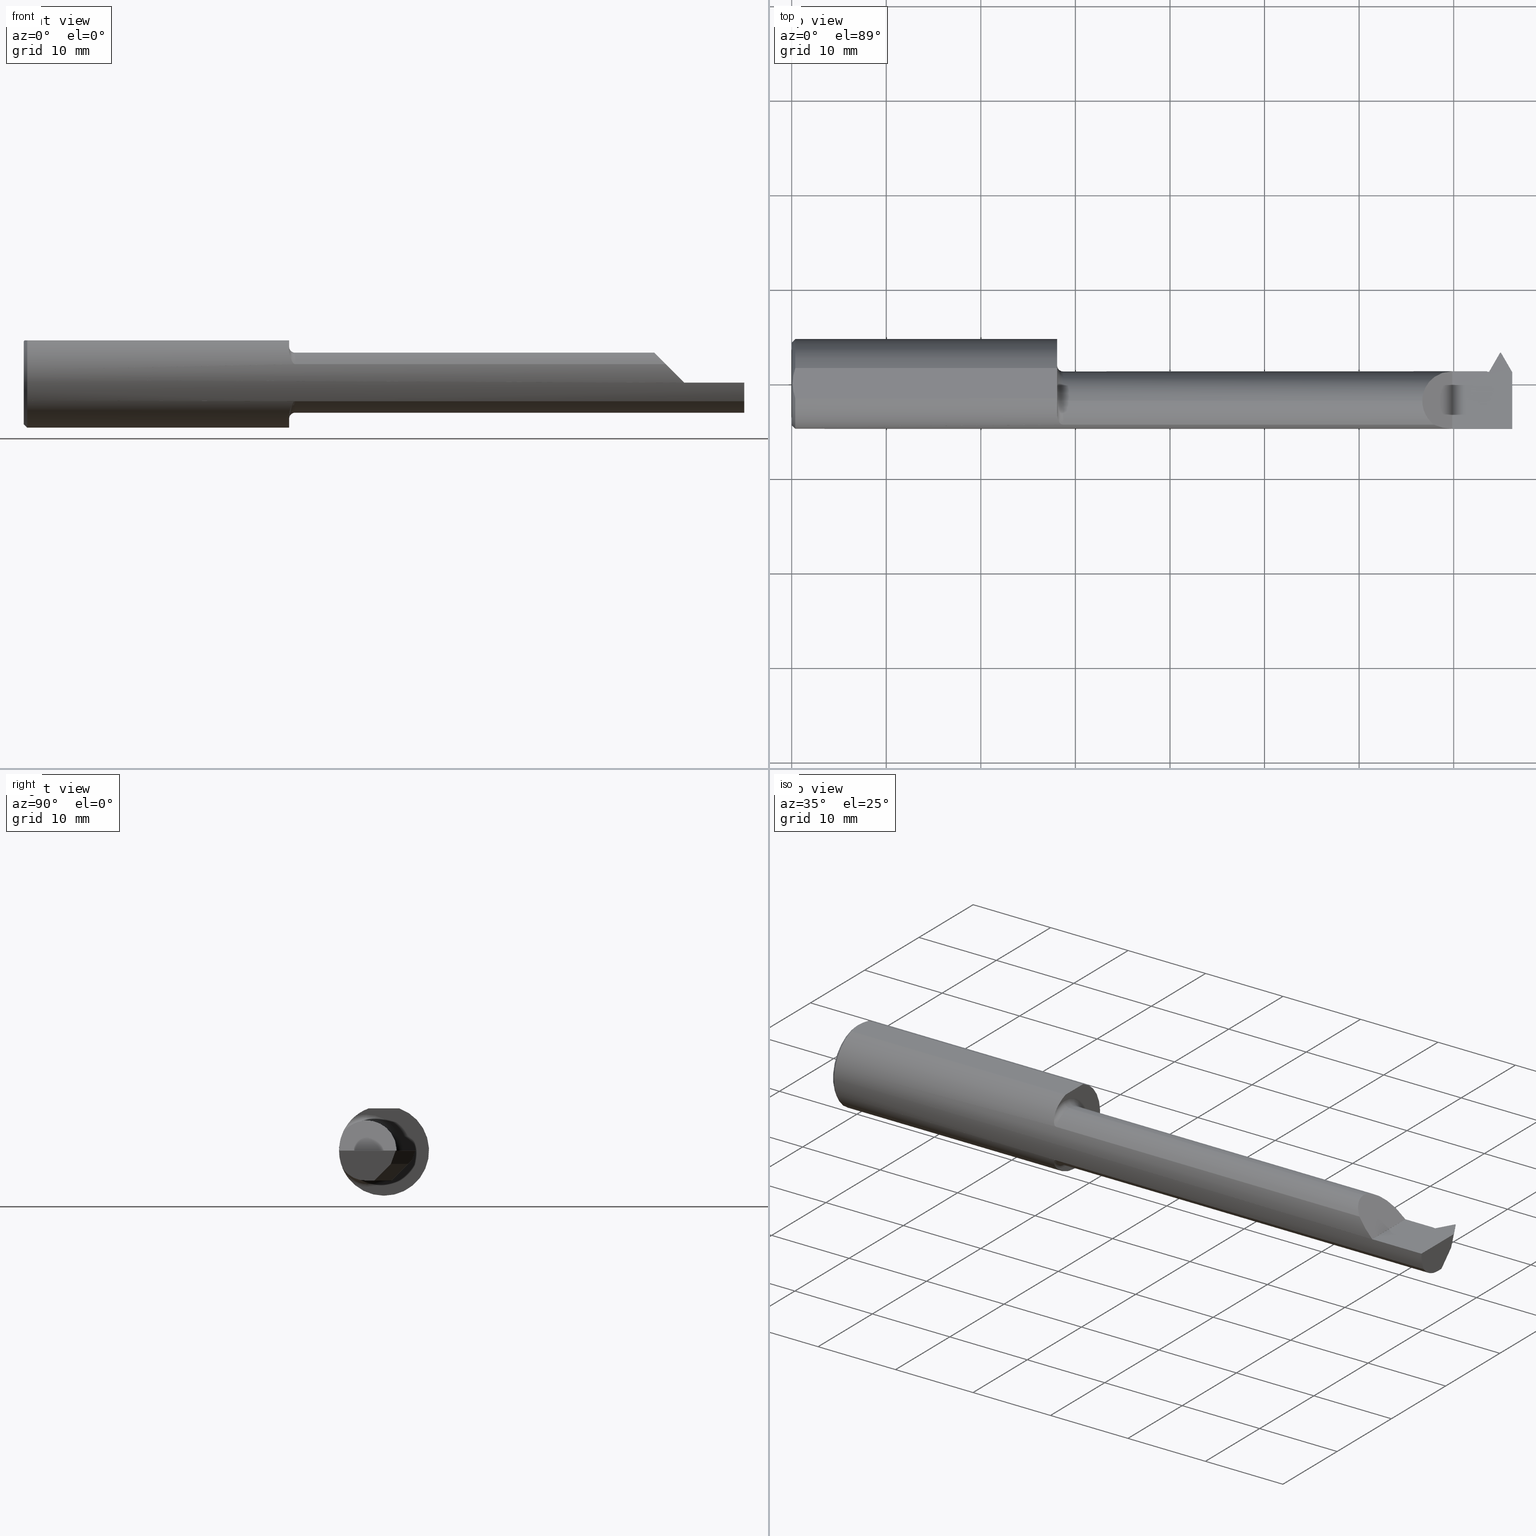
[diagram: canonical four-view strip — front | top / right | iso, engineering-drawing reading convention]
A machine part, canonical four-view strip (front | top / right | iso — engineering-drawing reading convention). The complete STEP part file that produces these views, byte-faithful:
ISO-10303-21;
HEADER;
FILE_DESCRIPTION (( 'STEP AP203' ),
    '1' );
FILE_NAME ('230406-TT3201800.STEP',
    '2025-04-22T22:50:56',
    ( '' ),
    ( '' ),
    'SwSTEP 2.0',
    'SolidWorks 2024',
    '' );
FILE_SCHEMA (( 'CONFIG_CONTROL_DESIGN' ));
ENDSEC;

DATA;
#1 = CARTESIAN_POINT ( 'NONE',  ( 3.000000000000000444, -0.07234999999999999765, -0.1249999999999999861 ) ) ;
#2 = VERTEX_POINT ( 'NONE', #913 ) ;
#3 = PERSON_AND_ORGANIZATION_ROLE ( 'creator' ) ;
#4 = DIMENSIONAL_EXPONENTS ( 1.000000000000000000, 0.000000000000000000, 0.000000000000000000, 0.000000000000000000, 0.000000000000000000, 0.000000000000000000, 0.000000000000000000 ) ;
#5 = LINE ( 'NONE', #540, #828 ) ;
#6 = ORIENTED_EDGE ( 'NONE', *, *, #688, .T. ) ;
#7 = ORIENTED_EDGE ( 'NONE', *, *, #121, .T. ) ;
#8 = ADVANCED_BREP_SHAPE_REPRESENTATION ( '230406-TT3201800', ( #551, #399 ), #338 ) ;
#9 = DIRECTION ( 'NONE',  ( 0.000000000000000000, 1.000000000000000000, -1.224646799147353207E-16 ) ) ;
#10 = ORIENTED_EDGE ( 'NONE', *, *, #598, .F. ) ;
#11 = EDGE_CURVE ( 'NONE', #236, #78, #826, .T. ) ;
#12 = EDGE_LOOP ( 'NONE', ( #818, #614, #853, #297, #376, #262, #517, #325, #678, #32, #511, #446, #660 ) ) ;
#13 = APPLICATION_CONTEXT ( 'configuration controlled 3d designs of mechanical parts and assemblies' ) ;
#14 = UNCERTAINTY_MEASURE_WITH_UNIT (LENGTH_MEASURE( 1.000000000000000082E-05 ), #452, 'distance_accuracy_value', 'NONE');
#15 = DIRECTION ( 'NONE',  ( -1.000000000000000000, -7.132202778015815737E-15, 0.000000000000000000 ) ) ;
#16 = ORIENTED_EDGE ( 'NONE', *, *, #574, .T. ) ;
#17 = AXIS2_PLACEMENT_3D ( 'NONE', #907, #403, #233 ) ;
#18 = APPROVAL ( #86, 'UNSPECIFIED' ) ;
#19 = ORIENTED_EDGE ( 'NONE', *, *, #87, .F. ) ;
#20 = EDGE_CURVE ( 'NONE', #926, #248, #55, .T. ) ;
#21 = DIRECTION ( 'NONE',  ( -0.7071067811865484609, 0.000000000000000000, -0.7071067811865466846 ) ) ;
#22 = CARTESIAN_POINT ( 'NONE',  ( 1.123606395404012082, -0.1693970531853374040, -0.08003777040702685086 ) ) ;
#23 = ORIENTED_EDGE ( 'NONE', *, *, #413, .F. ) ;
#24 = ORIENTED_EDGE ( 'NONE', *, *, #518, .F. ) ;
#25 = CARTESIAN_POINT ( 'NONE',  ( 2.909054084941630869, 0.03909855666502037169, -0.05660582317468507846 ) ) ;
#26 = ADVANCED_FACE ( 'NONE', ( #876 ), #651, .F. ) ;
#27 = DIRECTION ( 'NONE',  ( 0.000000000000000000, 0.000000000000000000, -1.000000000000000000 ) ) ;
#28 = ORIENTED_EDGE ( 'NONE', *, *, #884, .F. ) ;
#29 = ORIENTED_EDGE ( 'NONE', *, *, #587, .T. ) ;
#30 = DIRECTION ( 'NONE',  ( 0.5000000000000004441, -0.8660254037844382635, 0.000000000000000000 ) ) ;
#31 = CARTESIAN_POINT ( 'NONE',  ( 1.126406265684706920, -0.1703893073657098967, 0.07790344355110692676 ) ) ;
#32 = ORIENTED_EDGE ( 'NONE', *, *, #710, .F. ) ;
#33 = AXIS2_PLACEMENT_3D ( 'NONE', #124, #956, #728 ) ;
#34 = PLANE ( 'NONE',  #964 ) ;
#35 = CALENDAR_DATE ( 2025, 22, 4 ) ;
#36 = VECTOR ( 'NONE', #106, 39.37007874015748143 ) ;
#37 = SECURITY_CLASSIFICATION ( '', '', #980 ) ;
#38 = CARTESIAN_POINT ( 'NONE',  ( 3.000000000000000444, -0.07234999999999999765, -0.1249999999999999861 ) ) ;
#39 = CARTESIAN_POINT ( 'NONE',  ( 2.903311978464827359, 0.05065000000000000058, 0.000000000000000000 ) ) ;
#40 = EDGE_CURVE ( 'NONE', #84, #536, #333, .T. ) ;
#41 = CARTESIAN_POINT ( 'NONE',  ( 0.000000000000000000, 0.000000000000000000, -0.1723499999999960064 ) ) ;
#42 = LINE ( 'NONE', #656, #934 ) ;
#43 = CARTESIAN_POINT ( 'NONE',  ( 1.130000000000000115, -0.07234999999999998377, 0.000000000000000000 ) ) ;
#44 = CARTESIAN_POINT ( 'NONE',  ( 2.890128569999998120, 0.1160911906293554396, -0.04000000000000070166 ) ) ;
#45 = EDGE_CURVE ( 'NONE', #536, #266, #603, .T. ) ;
#46 = DIRECTION ( 'NONE',  ( -1.000000000000000000, -0.000000000000000000, -0.000000000000000000 ) ) ;
#47 = CARTESIAN_POINT ( 'NONE',  ( 1.123558876738254053, -0.1693773766851884854, 0.08007975305238293484 ) ) ;
#48 = CARTESIAN_POINT ( 'NONE',  ( 2.903311978464827359, 0.05065000000000000058, 0.000000000000000000 ) ) ;
#49 = ADVANCED_FACE ( 'NONE', ( #805 ), #50, .F. ) ;
#50 = TOROIDAL_SURFACE ( 'NONE', #174, 0.1499999999999999944, 0.02500000000000000139 ) ;
#51 = DIRECTION ( 'NONE',  ( -0.5000000000000119904, 0.000000000000000000, 0.8660254037844317132 ) ) ;
#52 = VECTOR ( 'NONE', #944, 39.37007874015748854 ) ;
#53 = EDGE_CURVE ( 'NONE', #222, #85, #188, .T. ) ;
#54 = DIRECTION ( 'NONE',  ( -0.09000871797897319615, 0.6219594709071095684, 0.7778591435708203106 ) ) ;
#55 = LINE ( 'NONE', #44, #780 ) ;
#56 = DIRECTION ( 'NONE',  ( 1.000000000000000000, -0.000000000000000000, -0.000000000000000000 ) ) ;
#57 = DIRECTION ( 'NONE',  ( 0.000000000000000000, 8.878505979408855953E-16, -1.000000000000000000 ) ) ;
#58 = CARTESIAN_POINT ( 'NONE',  ( 2.625350000000000961, -0.07234999999999998377, 0.1250000000000000000 ) ) ;
#59 = ORIENTED_EDGE ( 'NONE', *, *, #712, .T. ) ;
#60 = LINE ( 'NONE', #352, #570 ) ;
#61 = CARTESIAN_POINT ( 'NONE',  ( 2.918416935535161016, -2.832881436537681541, 0.3720156510033689745 ) ) ;
#62 = LINE ( 'NONE', #586, #159 ) ;
#63 = VERTEX_POINT ( 'NONE', #655 ) ;
#64 = DIRECTION ( 'NONE',  ( 0.000000000000000000, 0.000000000000000000, 1.000000000000000000 ) ) ;
#65 = CONICAL_SURFACE ( 'NONE', #303, 0.1873499999999999888, 0.7853981633974449483 ) ;
#66 = TOROIDAL_SURFACE ( 'NONE', #492, 0.1499999999999999944, 0.02500000000000000139 ) ;
#67 = PLANE ( 'NONE',  #97 ) ;
#68 = ORIENTED_EDGE ( 'NONE', *, *, #408, .T. ) ;
#69 = COORDINATED_UNIVERSAL_TIME_OFFSET ( 8, 0, .BEHIND. ) ;
#70 = CARTESIAN_POINT ( 'NONE',  ( 2.958081573593462021, 0.1010911906293559537, -0.05500000000000006273 ) ) ;
#71 = DIRECTION ( 'NONE',  ( -1.000000000000000000, -0.000000000000000000, -0.000000000000000000 ) ) ;
#72 = ORIENTED_EDGE ( 'NONE', *, *, #306, .T. ) ;
#73 = EDGE_CURVE ( 'NONE', #628, #916, #808, .T. ) ;
#74 = ORIENTED_EDGE ( 'NONE', *, *, #532, .T. ) ;
#75 = DIRECTION ( 'NONE',  ( -0.01827811026638581984, 0.9998329413882549588, -2.416947091259837578E-16 ) ) ;
#76 = DIRECTION ( 'NONE',  ( 1.000000000000000000, -0.000000000000000000, -0.000000000000000000 ) ) ;
#77 = ORIENTED_EDGE ( 'NONE', *, *, #469, .F. ) ;
#78 = VERTEX_POINT ( 'NONE', #41 ) ;
#79 = CALENDAR_DATE ( 2025, 22, 4 ) ;
#80 = EDGE_CURVE ( 'NONE', #616, #702, #200, .T. ) ;
#81 = CONICAL_SURFACE ( 'NONE', #763, 0.1873499999999999888, 0.7853981633974449483 ) ;
#82 = AXIS2_PLACEMENT_3D ( 'NONE', #810, #277, #437 ) ;
#83 = DIRECTION ( 'NONE',  ( 0.000000000000000000, 0.000000000000000000, 1.000000000000000000 ) ) ;
#84 = VERTEX_POINT ( 'NONE', #942 ) ;
#85 = VERTEX_POINT ( 'NONE', #279 ) ;
#86 = APPROVAL_STATUS ( 'not_yet_approved' ) ;
#87 = EDGE_CURVE ( 'NONE', #767, #628, #414, .T. ) ;
#88 = DIRECTION ( 'NONE',  ( -0.000000000000000000, 0.000000000000000000, -1.000000000000000000 ) ) ;
#89 = ORIENTED_EDGE ( 'NONE', *, *, #11, .T. ) ;
#90 = ORIENTED_EDGE ( 'NONE', *, *, #538, .T. ) ;
#91 = CC_DESIGN_PERSON_AND_ORGANIZATION_ASSIGNMENT ( #761, #825, ( #706 ) ) ;
#92 = DIRECTION ( 'NONE',  ( 0.000000000000000000, 0.000000000000000000, 1.000000000000000000 ) ) ;
#93 = ORIENTED_EDGE ( 'NONE', *, *, #878, .F. ) ;
#94 = VERTEX_POINT ( 'NONE', #112 ) ;
#95 =( BOUNDED_CURVE ( )  B_SPLINE_CURVE ( 3, ( #549, #852, #632, #116 ),
 .UNSPECIFIED., .F., .T. ) 
 B_SPLINE_CURVE_WITH_KNOTS ( ( 4, 4 ),
 ( 1.139420741225466882, 1.570796326794926756 ),
 .UNSPECIFIED. ) 
 CURVE ( )  GEOMETRIC_REPRESENTATION_ITEM ( )  RATIONAL_B_SPLINE_CURVE ( ( 1.000000000000000000, 0.9845529495419456101, 0.9845529495419456101, 1.000000000000000000 ) ) 
 REPRESENTATION_ITEM ( '' )  );
#96 = CARTESIAN_POINT ( 'NONE',  ( 1.130000000000000115, -0.07234999999999998377, 0.1250000000000000000 ) ) ;
#97 = AXIS2_PLACEMENT_3D ( 'NONE', #898, #216, #814 ) ;
#98 = CARTESIAN_POINT ( 'NONE',  ( 0.008774081248147729342, -0.04260406931483737281, 0.1763499999999999790 ) ) ;
#99 = ORIENTED_EDGE ( 'NONE', *, *, #177, .T. ) ;
#100 = ORIENTED_EDGE ( 'NONE', *, *, #191, .T. ) ;
#101 = DIRECTION ( 'NONE',  ( -0.7071067811865465735, 0.000000000000000000, 0.7071067811865483499 ) ) ;
#102 = CARTESIAN_POINT ( 'NONE',  ( 1.119299808151414055, -0.1667638676707169920, -0.08543442767820323691 ) ) ;
#103 = ORIENTED_EDGE ( 'NONE', *, *, #45, .T. ) ;
#104 = VERTEX_POINT ( 'NONE', #108 ) ;
#105 = CARTESIAN_POINT ( 'NONE',  ( 0.01500000000000407431, 0.000000000000000000, -0.1873499999999999888 ) ) ;
#106 = DIRECTION ( 'NONE',  ( -0.1021978390768664702, 0.1770118497048815687, 0.9788883525469466163 ) ) ;
#107 = ORIENTED_EDGE ( 'NONE', *, *, #948, .T. ) ;
#108 = CARTESIAN_POINT ( 'NONE',  ( 2.750000000000000444, 0.05264950999903968143, 0.0003499999999995605151 ) ) ;
#109 = CARTESIAN_POINT ( 'NONE',  ( 2.750000000000000444, 0.2999999999999999889, -6.429183357567480113E-17 ) ) ;
#110 = EDGE_CURVE ( 'NONE', #788, #521, #411, .T. ) ;
#111 = CARTESIAN_POINT ( 'NONE',  ( 1.128119196786478762, -0.1707639599170697742, 0.07706940050007768384 ) ) ;
#112 = CARTESIAN_POINT ( 'NONE',  ( 1.105000000000000204, -0.1232518659295093050, 0.1410992560040422727 ) ) ;
#113 = VECTOR ( 'NONE', #681, 39.37007874015748143 ) ;
#114 = PLANE ( 'NONE',  #799 ) ;
#115 = EDGE_CURVE ( 'NONE', #440, #245, #711, .T. ) ;
#116 = CARTESIAN_POINT ( 'NONE',  ( 2.894999999999999574, 0.05265000000000001623, 0.000000000000000000 ) ) ;
#117 = DIRECTION ( 'NONE',  ( 1.000000000000000000, 0.000000000000000000, 0.000000000000000000 ) ) ;
#118 = CARTESIAN_POINT ( 'NONE',  ( 1.130000000000000115, -0.07234999999999998377, 0.000000000000000000 ) ) ;
#119 = CARTESIAN_POINT ( 'NONE',  ( 3.000000000000000444, 0.1395529379841212447, -0.1250000000000000278 ) ) ;
#120 = CARTESIAN_POINT ( 'NONE',  ( 1.130000000000000115, -0.07234999999999998377, 0.000000000000000000 ) ) ;
#121 = EDGE_CURVE ( 'NONE', #686, #926, #715, .T. ) ;
#122 = LINE ( 'NONE', #739, #636 ) ;
#123 = CARTESIAN_POINT ( 'NONE',  ( 2.909054084941630869, 0.1283568358907694884, -0.05500000000000006967 ) ) ;
#124 = CARTESIAN_POINT ( 'NONE',  ( 1.105000000000000204, -0.07234999999999998377, 0.000000000000000000 ) ) ;
#125 = TOROIDAL_SURFACE ( 'NONE', #366, 0.1499999999999999944, 0.02500000000000000139 ) ;
#126 = EDGE_CURVE ( 'NONE', #231, #94, #462, .T. ) ;
#127 = CIRCLE ( 'NONE', #733, 0.1250000000000000000 ) ;
#128 = DIRECTION ( 'NONE',  ( 6.702078320450248417E-15, -0.9396926207859128688, 0.3420201433256565560 ) ) ;
#129 = LOCAL_TIME ( 15, 50, 56.00000000000000000, #301 ) ;
#130 = DIRECTION ( 'NONE',  ( 0.000000000000000000, 0.000000000000000000, 1.000000000000000000 ) ) ;
#131 = DIRECTION ( 'NONE',  ( 0.000000000000000000, 0.000000000000000000, -1.000000000000000000 ) ) ;
#132 = ORIENTED_EDGE ( 'NONE', *, *, #878, .T. ) ;
#133 = DIRECTION ( 'NONE',  ( 1.000000000000000000, 0.000000000000000000, 0.000000000000000000 ) ) ;
#134 = CARTESIAN_POINT ( 'NONE',  ( 2.942591915616447285, 0.1431202488164560194, -0.01297094181290040296 ) ) ;
#135 = DIRECTION ( 'NONE',  ( 0.000000000000000000, 0.000000000000000000, -1.000000000000000000 ) ) ;
#136 = ORIENTED_EDGE ( 'NONE', *, *, #778, .T. ) ;
#137 = PERSON_AND_ORGANIZATION ( #264, #179 ) ;
#138 = CARTESIAN_POINT ( 'NONE',  ( 2.903311978464827359, 0.05065000000000000058, 0.000000000000000000 ) ) ;
#139 = DIRECTION ( 'NONE',  ( -1.000000000000000000, -0.000000000000000000, -0.000000000000000000 ) ) ;
#140 = EDGE_LOOP ( 'NONE', ( #906, #326, #330, #337, #743, #72 ) ) ;
#141 = DATE_AND_TIME ( #214, #129 ) ;
#142 = CIRCLE ( 'NONE', #946, 0.1873499999999999888 ) ;
#143 = CIRCLE ( 'NONE', #318, 0.1723499999999960064 ) ;
#144 = CARTESIAN_POINT ( 'NONE',  ( 1.130000000000000115, -0.07234999999999996989, -0.1250000000000000000 ) ) ;
#145 = ADVANCED_FACE ( 'NONE', ( #429 ), #34, .F. ) ;
#146 = CARTESIAN_POINT ( 'NONE',  ( 0.004000000000001806798, 1.478949963872918835E-16, 0.1763499999999999790 ) ) ;
#147 = EDGE_LOOP ( 'NONE', ( #819, #979, #962, #602 ) ) ;
#148 = ORIENTED_EDGE ( 'NONE', *, *, #924, .F. ) ;
#149 = DATE_AND_TIME ( #692, #831 ) ;
#150 = CARTESIAN_POINT ( 'NONE',  ( 2.625350000000000961, -0.07234999999999998377, 0.1250000000000000000 ) ) ;
#151 = CARTESIAN_POINT ( 'NONE',  ( 2.002500000000000391, -0.1707639599170698019, -0.07706940050007766996 ) ) ;
#152 = ORIENTED_EDGE ( 'NONE', *, *, #53, .T. ) ;
#153 = ORIENTED_EDGE ( 'NONE', *, *, #532, .F. ) ;
#154 = CARTESIAN_POINT ( 'NONE',  ( 0.000000000000000000, 0.000000000000000000, 0.000000000000000000 ) ) ;
#155 = CARTESIAN_POINT ( 'NONE',  ( 0.004000000000001806798, 1.478949963872918835E-16, 0.1763499999999999790 ) ) ;
#156 = ORIENTED_EDGE ( 'NONE', *, *, #257, .T. ) ;
#157 = DATE_AND_TIME ( #237, #966 ) ;
#158 = ADVANCED_FACE ( 'NONE', ( #267 ), #65, .T. ) ;
#159 = VECTOR ( 'NONE', #601, 39.37007874015748143 ) ;
#160 = VECTOR ( 'NONE', #46, 39.37007874015748143 ) ;
#161 = CC_DESIGN_APPROVAL ( #725, ( #37 ) ) ;
#162 = FACE_OUTER_BOUND ( 'NONE', #230, .T. ) ;
#163 = ORIENTED_EDGE ( 'NONE', *, *, #219, .T. ) ;
#164 = EDGE_LOOP ( 'NONE', ( #845, #927, #289, #93, #528, #850, #841, #777, #148 ) ) ;
#165 = CC_DESIGN_PERSON_AND_ORGANIZATION_ASSIGNMENT ( #680, #3, ( #874 ) ) ;
#166 = DIRECTION ( 'NONE',  ( -1.000000000000000000, 0.000000000000000000, 0.000000000000000000 ) ) ;
#167 = VERTEX_POINT ( 'NONE', #494 ) ;
#168 = ORIENTED_EDGE ( 'NONE', *, *, #306, .F. ) ;
#169 = LINE ( 'NONE', #105, #649 ) ;
#170 = FACE_OUTER_BOUND ( 'NONE', #140, .T. ) ;
#171 = ORIENTED_EDGE ( 'NONE', *, *, #408, .F. ) ;
#172 = ORIENTED_EDGE ( 'NONE', *, *, #110, .T. ) ;
#173 = LINE ( 'NONE', #453, #113 ) ;
#174 = AXIS2_PLACEMENT_3D ( 'NONE', #120, #117, #647 ) ;
#175 = CARTESIAN_POINT ( 'NONE',  ( 0.000000000000000000, 0.1749999999999999889, 0.1763499999999999790 ) ) ;
#176 = VERTEX_POINT ( 'NONE', #802 ) ;
#177 = EDGE_CURVE ( 'NONE', #94, #472, #553, .T. ) ;
#178 = VECTOR ( 'NONE', #654, 39.37007874015748143 ) ;
#179 = ORGANIZATION ( 'UNSPECIFIED', 'UNSPECIFIED', '' ) ;
#180 = VERTEX_POINT ( 'NONE', #520 ) ;
#181 = DIRECTION ( 'NONE',  ( -1.000000000000000000, 0.000000000000000000, -0.000000000000000000 ) ) ;
#182 = CARTESIAN_POINT ( 'NONE',  ( 1.119265545959849284, -0.1667364282984899193, 0.08548857678050766906 ) ) ;
#183 = ORIENTED_EDGE ( 'NONE', *, *, #587, .F. ) ;
#184 = PRODUCT_RELATED_PRODUCT_CATEGORY ( 'detail', '', ( #706 ) ) ;
#185 = CARTESIAN_POINT ( 'NONE',  ( 2.002500000000000391, -0.1707639599170698019, 0.07706940050007766996 ) ) ;
#186 = DIRECTION ( 'NONE',  ( 0.1779435454738421407, 0.000000000000000000, 0.9840406976462907629 ) ) ;
#187 = CARTESIAN_POINT ( 'NONE',  ( 2.894999999999999574, 0.05065000000000000058, 0.000000000000000000 ) ) ;
#188 = LINE ( 'NONE', #48, #732 ) ;
#189 = DATE_AND_TIME ( #35, #950 ) ;
#190 = CARTESIAN_POINT ( 'NONE',  ( 2.943918426406539446, 0.03109119062935531211, -0.1249999999999999584 ) ) ;
#191 = EDGE_CURVE ( 'NONE', #765, #611, #142, .T. ) ;
#192 = DIRECTION ( 'NONE',  ( 0.5000000000000004441, -0.8660254037844382635, 0.000000000000000000 ) ) ;
#193 = CIRCLE ( 'NONE', #287, 0.02500000000000000486 ) ;
#194 = DIRECTION ( 'NONE',  ( 0.8522042425194475967, -0.4920203488231490452, 0.1779435454738421962 ) ) ;
#195 = VECTOR ( 'NONE', #747, 39.37007874015748143 ) ;
#196 = CC_DESIGN_APPROVAL ( #227, ( #513 ) ) ;
#197 = PLANE ( 'NONE',  #288 ) ;
#198 =( BOUNDED_CURVE ( )  B_SPLINE_CURVE ( 3, ( #599, #902, #846, #255 ),
 .UNSPECIFIED., .F., .T. ) 
 B_SPLINE_CURVE_WITH_KNOTS ( ( 4, 4 ),
 ( 4.411180308844298459, 4.459909643144647440 ),
 .UNSPECIFIED. ) 
 CURVE ( )  GEOMETRIC_REPRESENTATION_ITEM ( )  RATIONAL_B_SPLINE_CURVE ( ( 1.000000000000000000, 0.9998021307870514907, 0.9998021307870514907, 1.000000000000000000 ) ) 
 REPRESENTATION_ITEM ( '' )  );
#199 = DIRECTION ( 'NONE',  ( 0.000000000000000000, 0.000000000000000000, 1.000000000000000000 ) ) ;
#200 = LINE ( 'NONE', #559, #522 ) ;
#201 = DIRECTION ( 'NONE',  ( -5.463695987328527226E-15, -1.000000000000000000, -0.000000000000000000 ) ) ;
#202 = DIRECTION ( 'NONE',  ( 1.000000000000000000, 0.000000000000000000, 0.000000000000000000 ) ) ;
#203 = ADVANCED_FACE ( 'NONE', ( #968 ), #125, .F. ) ;
#204 = CARTESIAN_POINT ( 'NONE',  ( 2.952750694374654206, 0.06227282877551700707, -0.1878647339454669885 ) ) ;
#205 = CARTESIAN_POINT ( 'NONE',  ( 2.952553377633873044, 0.1160911906293559948, -0.04000000000000022982 ) ) ;
#206 = CARTESIAN_POINT ( 'NONE',  ( 0.000000000000000000, 0.000000000000000000, 0.000000000000000000 ) ) ;
#207 = CARTESIAN_POINT ( 'NONE',  ( 2.913734622005793362, 0.008361908784099847045, -0.09544939905744401210 ) ) ;
#208 = VECTOR ( 'NONE', #342, 39.37007874015748143 ) ;
#209 = CIRCLE ( 'NONE', #258, 0.1873499999999999888 ) ;
#210 = DIRECTION ( 'NONE',  ( -0.4999999999999972800, 0.000000000000000000, -0.8660254037844402619 ) ) ;
#211 = CARTESIAN_POINT ( 'NONE',  ( 0.01500000000000407431, 0.000000000000000000, 0.000000000000000000 ) ) ;
#212 = DIRECTION ( 'NONE',  ( -1.000000000000000000, -0.000000000000000000, -0.000000000000000000 ) ) ;
#213 = EDGE_LOOP ( 'NONE', ( #309, #460, #545, #59 ) ) ;
#214 = CALENDAR_DATE ( 2025, 22, 4 ) ;
#215 = DIRECTION ( 'NONE',  ( -1.000000000000000000, -0.000000000000000000, -0.000000000000000000 ) ) ;
#216 = DIRECTION ( 'NONE',  ( 1.000000000000000000, 0.000000000000000000, 0.000000000000000000 ) ) ;
#217 = VERTEX_POINT ( 'NONE', #683 ) ;
#218 = ORIENTED_EDGE ( 'NONE', *, *, #854, .T. ) ;
#219 = EDGE_CURVE ( 'NONE', #592, #605, #449, .T. ) ;
#220 = FACE_OUTER_BOUND ( 'NONE', #481, .T. ) ;
#221 = CARTESIAN_POINT ( 'NONE',  ( 3.000000000000000444, 0.2999999999999999889, -6.429183357567480113E-17 ) ) ;
#222 = VERTEX_POINT ( 'NONE', #904 ) ;
#223 = EDGE_LOOP ( 'NONE', ( #633, #634, #673, #837 ) ) ;
#224 = APPROVAL_ROLE ( '' ) ;
#225 = CLOSED_SHELL ( 'NONE', ( #49, #490, #251, #431, #653, #358, #861, #26, #145, #455, #607, #829, #981, #631, #353, #388, #465, #756, #729, #789, #158, #235, #203, #890, #749, #867, #836, #485 ) ) ;
#226 = AXIS2_PLACEMENT_3D ( 'NONE', #138, #958, #519 ) ;
#227 = APPROVAL ( #373, 'UNSPECIFIED' ) ;
#228 = DIRECTION ( 'NONE',  ( 0.000000000000000000, 0.000000000000000000, -1.000000000000000000 ) ) ;
#229 = CARTESIAN_POINT ( 'NONE',  ( 1.105000000000000204, -0.06325108694718215019, 0.1763499999999999790 ) ) ;
#230 = EDGE_LOOP ( 'NONE', ( #773, #436, #774, #68, #244 ) ) ;
#231 = VERTEX_POINT ( 'NONE', #229 ) ;
#232 =( NAMED_UNIT ( * ) SI_UNIT ( $, .STERADIAN. ) SOLID_ANGLE_UNIT ( ) );
#233 = DIRECTION ( 'NONE',  ( 0.1005834662396455775, 0.000000000000000000, -0.9949286237309780123 ) ) ;
#234 = DIRECTION ( 'NONE',  ( 0.000000000000000000, 0.000000000000000000, 1.000000000000000000 ) ) ;
#235 = ADVANCED_FACE ( 'NONE', ( #883 ), #67, .T. ) ;
#236 = VERTEX_POINT ( 'NONE', #444 ) ;
#237 = CALENDAR_DATE ( 2025, 22, 4 ) ;
#238 = CARTESIAN_POINT ( 'NONE',  ( 1.106555970616603712, -0.1439812988895032841, -0.1207222593517345149 ) ) ;
#239 = ORIENTED_EDGE ( 'NONE', *, *, #346, .F. ) ;
#240 = DIRECTION ( 'NONE',  ( -1.000000000000000000, -0.000000000000000000, -0.000000000000000000 ) ) ;
#241 = VECTOR ( 'NONE', #470, 39.37007874015748143 ) ;
#242 = VECTOR ( 'NONE', #641, 39.37007874015748143 ) ;
#243 = DIRECTION ( 'NONE',  ( -1.000000000000000000, -0.000000000000000000, -0.000000000000000000 ) ) ;
#244 = ORIENTED_EDGE ( 'NONE', *, *, #292, .F. ) ;
#245 = VERTEX_POINT ( 'NONE', #146 ) ;
#246 = EDGE_CURVE ( 'NONE', #589, #900, #830, .T. ) ;
#247 = LINE ( 'NONE', #925, #746 ) ;
#248 = VERTEX_POINT ( 'NONE', #286 ) ;
#249 = VERTEX_POINT ( 'NONE', #677 ) ;
#250 = CARTESIAN_POINT ( 'NONE',  ( 1.130000000000000115, -0.1707639599170698019, -0.07706940050007766996 ) ) ;
#251 = ADVANCED_FACE ( 'NONE', ( #515 ), #81, .T. ) ;
#252 = CARTESIAN_POINT ( 'NONE',  ( 0.01500000000000407431, 0.06325108694718213631, 0.1763499999999999790 ) ) ;
#253 = ORIENTED_EDGE ( 'NONE', *, *, #11, .F. ) ;
#254 = ORIENTED_EDGE ( 'NONE', *, *, #394, .T. ) ;
#255 = CARTESIAN_POINT ( 'NONE',  ( 2.908768555666733313, 0.04119893105087690799, -0.05226509597430400306 ) ) ;
#256 = VECTOR ( 'NONE', #823, 39.37007874015748143 ) ;
#257 = EDGE_CURVE ( 'NONE', #616, #63, #676, .T. ) ;
#258 = AXIS2_PLACEMENT_3D ( 'NONE', #211, #741, #228 ) ;
#259 = DIRECTION ( 'NONE',  ( 1.000000000000000000, 0.000000000000000000, 0.000000000000000000 ) ) ;
#260 = ORIENTED_EDGE ( 'NONE', *, *, #507, .F. ) ;
#261 = EDGE_CURVE ( 'NONE', #849, #592, #62, .T. ) ;
#262 = ORIENTED_EDGE ( 'NONE', *, *, #929, .T. ) ;
#263 = PLANE ( 'NONE',  #812 ) ;
#264 = PERSON ( 'UNSPECIFIED', 'UNSPECIFIED', 'UNSPECIFIED', ('UNSPECIFIED'), ('UNSPECIFIED'), ('UNSPECIFIED') ) ;
#265 = CARTESIAN_POINT ( 'NONE',  ( 1.105424272813302800, -0.1340287381043765713, 0.1311054684688081062 ) ) ;
#266 = VERTEX_POINT ( 'NONE', #894 ) ;
#267 = FACE_OUTER_BOUND ( 'NONE', #331, .T. ) ;
#268 = EDGE_CURVE ( 'NONE', #922, #562, #527, .T. ) ;
#269 = DIRECTION ( 'NONE',  ( 1.000000000000000000, 0.000000000000000000, 0.000000000000000000 ) ) ;
#270 = CARTESIAN_POINT ( 'NONE',  ( 2.951000000000000512, 0.1332480762113577022, 0.000000000000000000 ) ) ;
#271 = CARTESIAN_POINT ( 'NONE',  ( 0.008798171893812552213, 0.04269596770163364835, 0.1763499999999999790 ) ) ;
#272 = CC_DESIGN_DATE_AND_TIME_ASSIGNMENT ( #157, #461, ( #37 ) ) ;
#273 = DIRECTION ( 'NONE',  ( 0.000000000000000000, -0.7071067811865511255, -0.7071067811865439090 ) ) ;
#274 = CARTESIAN_POINT ( 'NONE',  ( 2.909054084941630869, -0.01574417682531562002, -0.1114485566650206955 ) ) ;
#275 = DIRECTION ( 'NONE',  ( 0.000000000000000000, 0.000000000000000000, -1.000000000000000000 ) ) ;
#276 = VECTOR ( 'NONE', #635, 39.37007874015748143 ) ;
#277 = DIRECTION ( 'NONE',  ( -1.000000000000000000, -0.000000000000000000, -0.000000000000000000 ) ) ;
#278 = CARTESIAN_POINT ( 'NONE',  ( 1.111436535702075679, -0.1564726682735308738, 0.1032790376104839869 ) ) ;
#279 = CARTESIAN_POINT ( 'NONE',  ( 2.903311978464827359, 0.05065000000000000058, 0.000000000000000000 ) ) ;
#280 = CARTESIAN_POINT ( 'NONE',  ( 2.958081573593462021, 0.1306500000000036799, -0.02544119062935258982 ) ) ;
#281 = EDGE_CURVE ( 'NONE', #249, #760, #591, .T. ) ;
#282 = CARTESIAN_POINT ( 'NONE',  ( 2.911507999980800676, -0.007106926527361681623, -0.1070616118923666676 ) ) ;
#283 = DIRECTION ( 'NONE',  ( 1.000000000000000000, 0.000000000000000000, 0.000000000000000000 ) ) ;
#284 = DIRECTION ( 'NONE',  ( -1.361627173567259105E-15, 0.7071067811865511255, 0.7071067811865440200 ) ) ;
#285 = CARTESIAN_POINT ( 'NONE',  ( 2.913075199203175814, 0.0009645913569538208795, -0.1017045626867875557 ) ) ;
#286 = CARTESIAN_POINT ( 'NONE',  ( 2.949446622366126647, 0.1160911906293560919, -0.04000000000000002859 ) ) ;
#287 = AXIS2_PLACEMENT_3D ( 'NONE', #466, #9, #234 ) ;
#288 = AXIS2_PLACEMENT_3D ( 'NONE', #582, #356, #51 ) ;
#289 = ORIENTED_EDGE ( 'NONE', *, *, #433, .T. ) ;
#290 = DIRECTION ( 'NONE',  ( 0.000000000000000000, 0.000000000000000000, -1.000000000000000000 ) ) ;
#291 = LINE ( 'NONE', #734, #523 ) ;
#292 = EDGE_CURVE ( 'NONE', #231, #765, #960, .T. ) ;
#293 = ORIENTED_EDGE ( 'NONE', *, *, #424, .T. ) ;
#294 = CARTESIAN_POINT ( 'NONE',  ( 2.943918426406539446, 0.1306500000000035966, -0.02544119062935269043 ) ) ;
#295 = CARTESIAN_POINT ( 'NONE',  ( 2.673280599499922694, -0.1707639599170701628, 0.07706940050007689280 ) ) ;
#296 = ORIENTED_EDGE ( 'NONE', *, *, #924, .T. ) ;
#297 = ORIENTED_EDGE ( 'NONE', *, *, #847, .F. ) ;
#298 = CARTESIAN_POINT ( 'NONE',  ( 2.913734622005793362, 0.008361908784099847045, -0.09544939905744401210 ) ) ;
#299 = CARTESIAN_POINT ( 'NONE',  ( 2.917651630723346656, -0.04248585645573352970, -0.1250000000000000555 ) ) ;
#300 = ORIENTED_EDGE ( 'NONE', *, *, #191, .F. ) ;
#301 = COORDINATED_UNIVERSAL_TIME_OFFSET ( 8, 0, .BEHIND. ) ;
#302 = AXIS2_PLACEMENT_3D ( 'NONE', #506, #283, #135 ) ;
#303 = AXIS2_PLACEMENT_3D ( 'NONE', #563, #417, #722 ) ;
#304 = AXIS2_PLACEMENT_3D ( 'NONE', #123, #487, #713 ) ;
#305 = APPROVAL_PERSON_ORGANIZATION ( #442, #227, #224 ) ;
#306 = EDGE_CURVE ( 'NONE', #249, #755, #621, .T. ) ;
#307 = PLANE ( 'NONE',  #17 ) ;
#308 = CARTESIAN_POINT ( 'NONE',  ( 1.128132574457247683, -0.1707639599170697742, -0.07706940050007782261 ) ) ;
#309 = ORIENTED_EDGE ( 'NONE', *, *, #929, .F. ) ;
#310 = PERSON_AND_ORGANIZATION ( #264, #179 ) ;
#311 = CARTESIAN_POINT ( 'NONE',  ( 0.004000000000003662952, -0.01076149482173470104, 0.1763499999999999512 ) ) ;
#312 = ORIENTED_EDGE ( 'NONE', *, *, #413, .T. ) ;
#313 = ORIENTED_EDGE ( 'NONE', *, *, #377, .T. ) ;
#314 = DIRECTION ( 'NONE',  ( -0.4999999999999947820, 0.8660254037844417052, -2.229828567416429701E-16 ) ) ;
#315 = EDGE_LOOP ( 'NONE', ( #638, #89 ) ) ;
#316 = DIRECTION ( 'NONE',  ( 0.000000000000000000, 0.000000000000000000, -1.000000000000000000 ) ) ;
#317 = AXIS2_PLACEMENT_3D ( 'NONE', #695, #240, #316 ) ;
#318 = AXIS2_PLACEMENT_3D ( 'NONE', #206, #434, #448 ) ;
#319 = DIRECTION ( 'NONE',  ( 1.000000000000000000, 0.000000000000000000, 0.000000000000000000 ) ) ;
#320 = ORIENTED_EDGE ( 'NONE', *, *, #643, .F. ) ;
#321 = EDGE_LOOP ( 'NONE', ( #7, #588, #667, #441 ) ) ;
#322 = EDGE_CURVE ( 'NONE', #589, #249, #478, .T. ) ;
#323 = DIRECTION ( 'NONE',  ( -0.000000000000000000, 1.000000000000000000, -0.000000000000000000 ) ) ;
#324 = CARTESIAN_POINT ( 'NONE',  ( 0.004991821518936828857, -0.02143118227845417639, 0.1763499999999999790 ) ) ;
#325 = ORIENTED_EDGE ( 'NONE', *, *, #438, .F. ) ;
#326 = ORIENTED_EDGE ( 'NONE', *, *, #762, .F. ) ;
#327 = SHAPE_DEFINITION_REPRESENTATION ( #863, #8 ) ;
#328 = FACE_OUTER_BOUND ( 'NONE', #402, .T. ) ;
#329 = CARTESIAN_POINT ( 'NONE',  ( 1.130000000000000115, -0.1707639599170698019, 0.07706940050007766996 ) ) ;
#330 = ORIENTED_EDGE ( 'NONE', *, *, #619, .F. ) ;
#331 = EDGE_LOOP ( 'NONE', ( #77, #471, #859, #300, #171 ) ) ;
#332 = FACE_OUTER_BOUND ( 'NONE', #213, .T. ) ;
#333 = CIRCLE ( 'NONE', #33, 0.1499999999999999944 ) ;
#334 = EDGE_CURVE ( 'NONE', #390, #916, #781, .T. ) ;
#335 = VECTOR ( 'NONE', #56, 39.37007874015748143 ) ;
#336 = FACE_OUTER_BOUND ( 'NONE', #978, .T. ) ;
#337 = ORIENTED_EDGE ( 'NONE', *, *, #246, .F. ) ;
#338 =( GEOMETRIC_REPRESENTATION_CONTEXT ( 3 ) GLOBAL_UNCERTAINTY_ASSIGNED_CONTEXT ( ( #14 ) ) GLOBAL_UNIT_ASSIGNED_CONTEXT ( ( #452, #674, #232 ) ) REPRESENTATION_CONTEXT ( 'NONE', 'WORKASPACE' ) );
#339 = DIRECTION ( 'NONE',  ( 0.000000000000000000, -1.000000000000000000, 2.417245856451656257E-16 ) ) ;
#340 = LINE ( 'NONE', #862, #351 ) ;
#341 = CARTESIAN_POINT ( 'NONE',  ( 2.750000000000000444, 0.000000000000000000, 0.000000000000000000 ) ) ;
#342 = DIRECTION ( 'NONE',  ( 1.000000000000000000, 0.000000000000000000, 0.000000000000000000 ) ) ;
#343 = CARTESIAN_POINT ( 'NONE',  ( 3.000000000000000444, -0.1873499999999999610, -6.429183357567480113E-17 ) ) ;
#344 = CARTESIAN_POINT ( 'NONE',  ( 1.113471533398396218, -0.1602710687746327356, 0.09725558226055724953 ) ) ;
#345 = CARTESIAN_POINT ( 'NONE',  ( 1.105000000000000204, 0.000000000000000000, 0.000000000000000000 ) ) ;
#346 = EDGE_CURVE ( 'NONE', #248, #167, #666, .T. ) ;
#347 = DIRECTION ( 'NONE',  ( 0.000000000000000000, -0.3420201433256565560, -0.9396926207859128688 ) ) ;
#348 = CARTESIAN_POINT ( 'NONE',  ( 2.909054084941630869, 0.03909855666502037169, -0.05660582317468507846 ) ) ;
#349 = VECTOR ( 'NONE', #952, 39.37007874015748854 ) ;
#350 = CARTESIAN_POINT ( 'NONE',  ( 0.004000000000001806798, 1.478949963872918835E-16, 0.1763499999999999790 ) ) ;
#351 = VECTOR ( 'NONE', #30, 39.37007874015748854 ) ;
#352 = CARTESIAN_POINT ( 'NONE',  ( 2.894999999999999574, 0.05065000000000000058, 0.000000000000000000 ) ) ;
#353 = ADVANCED_FACE ( 'NONE', ( #389 ), #480, .T. ) ;
#354 = CARTESIAN_POINT ( 'NONE',  ( 2.909054084941630869, -0.07234999999999998377, 0.000000000000000000 ) ) ;
#355 = DIRECTION ( 'NONE',  ( 1.000000000000000000, -0.000000000000000000, -0.000000000000000000 ) ) ;
#356 = DIRECTION ( 'NONE',  ( -0.7745966692414745225, 0.4472135954999640894, -0.4472135954999671426 ) ) ;
#357 = CC_DESIGN_PERSON_AND_ORGANIZATION_ASSIGNMENT ( #369, #820, ( #513 ) ) ;
#358 = ADVANCED_FACE ( 'NONE', ( #170 ), #474, .T. ) ;
#359 = CYLINDRICAL_SURFACE ( 'NONE', #463, 0.1250000000000000000 ) ;
#360 = CARTESIAN_POINT ( 'NONE',  ( 2.625350000000000517, -0.1114715001235034170, 0.1249999999999999861 ) ) ;
#361 = ORIENTED_EDGE ( 'NONE', *, *, #121, .F. ) ;
#362 = LINE ( 'NONE', #953, #335 ) ;
#363 = DIRECTION ( 'NONE',  ( 0.000000000000000000, -0.3401001459858873921, -0.9403892229818343607 ) ) ;
#364 = EDGE_CURVE ( 'NONE', #536, #760, #745, .T. ) ;
#365 = CARTESIAN_POINT ( 'NONE',  ( 2.916100958887600125, -0.01444220765322422675, -0.1147325352947247412 ) ) ;
#366 = AXIS2_PLACEMENT_3D ( 'NONE', #581, #753, #659 ) ;
#367 = AXIS2_PLACEMENT_3D ( 'NONE', #341, #804, #199 ) ;
#368 = ORIENTED_EDGE ( 'NONE', *, *, #40, .T. ) ;
#369 = PERSON_AND_ORGANIZATION ( #264, #179 ) ;
#370 = LINE ( 'NONE', #134, #965 ) ;
#371 = CARTESIAN_POINT ( 'NONE',  ( 0.01500000000000407431, 0.000000000000000000, 0.000000000000000000 ) ) ;
#372 = ORIENTED_EDGE ( 'NONE', *, *, #40, .F. ) ;
#373 = APPROVAL_STATUS ( 'not_yet_approved' ) ;
#374 = CARTESIAN_POINT ( 'NONE',  ( 2.952500000000001013, 0.1306500000000036243, 0.000000000000000000 ) ) ;
#375 = DIRECTION ( 'NONE',  ( -0.000000000000000000, 1.000000000000000000, -0.000000000000000000 ) ) ;
#376 = ORIENTED_EDGE ( 'NONE', *, *, #809, .F. ) ;
#377 = EDGE_CURVE ( 'NONE', #472, #84, #583, .T. ) ;
#378 = CARTESIAN_POINT ( 'NONE',  ( 3.000000000000000444, -0.07234999999999998377, 0.000000000000000000 ) ) ;
#379 = ORIENTED_EDGE ( 'NONE', *, *, #268, .T. ) ;
#380 = ORIENTED_EDGE ( 'NONE', *, *, #619, .T. ) ;
#381 = APPROVAL_DATE_TIME ( #149, #227 ) ;
#382 = VECTOR ( 'NONE', #610, 39.37007874015748854 ) ;
#383 = AXIS2_PLACEMENT_3D ( 'NONE', #118, #133, #290 ) ;
#384 = CARTESIAN_POINT ( 'NONE',  ( 2.949249114193977395, 0.06222061565551015999, -0.1880081883136850152 ) ) ;
#385 = ORIENTED_EDGE ( 'NONE', *, *, #281, .T. ) ;
#386 = ORIENTED_EDGE ( 'NONE', *, *, #126, .T. ) ;
#387 = COORDINATED_UNIVERSAL_TIME_OFFSET ( 8, 0, .BEHIND. ) ;
#388 = ADVANCED_FACE ( 'NONE', ( #162 ), #693, .F. ) ;
#389 = FACE_OUTER_BOUND ( 'NONE', #450, .T. ) ;
#390 = VERTEX_POINT ( 'NONE', #458 ) ;
#391 = ORIENTED_EDGE ( 'NONE', *, *, #507, .T. ) ;
#392 = CARTESIAN_POINT ( 'NONE',  ( 0.01157529649259233726, -0.05310709997271137461, 0.1763500000000000068 ) ) ;
#393 = ORIENTED_EDGE ( 'NONE', *, *, #580, .F. ) ;
#394 = EDGE_CURVE ( 'NONE', #767, #472, #193, .T. ) ;
#395 = EDGE_LOOP ( 'NONE', ( #28, #698, #899, #372 ) ) ;
#396 = CARTESIAN_POINT ( 'NONE',  ( 2.750000000000000444, -0.1873496730715054903, 0.0003499999999995605151 ) ) ;
#397 = AXIS2_PLACEMENT_3D ( 'NONE', #737, #139, #742 ) ;
#398 = AXIS2_PLACEMENT_3D ( 'NONE', #270, #707, #192 ) ;
#399 = AXIS2_PLACEMENT_3D ( 'NONE', #154, #64, #752 ) ;
#400 = EDGE_LOOP ( 'NONE', ( #29, #751, #970, #379, #293, #320, #531, #770 ) ) ;
#401 = EDGE_CURVE ( 'NONE', #755, #616, #623, .T. ) ;
#402 = EDGE_LOOP ( 'NONE', ( #550, #467, #612, #406 ) ) ;
#403 = DIRECTION ( 'NONE',  ( 0.9947640934854952155, 0.01818544582510274107, 0.1005668328631427882 ) ) ;
#404 = LINE ( 'NONE', #696, #871 ) ;
#405 = EDGE_LOOP ( 'NONE', ( #975, #524, #74, #132, #239, #16 ) ) ;
#406 = ORIENTED_EDGE ( 'NONE', *, *, #778, .F. ) ;
#407 = CARTESIAN_POINT ( 'NONE',  ( 0.01500000000000406737, -0.06325108694718213631, 0.1763499999999999790 ) ) ;
#408 = EDGE_CURVE ( 'NONE', #245, #765, #577, .T. ) ;
#409 = CARTESIAN_POINT ( 'NONE',  ( 1.105000000000000204, -0.1232518659295093050, -0.1410992560040422727 ) ) ;
#410 = VERTEX_POINT ( 'NONE', #544 ) ;
#411 = LINE ( 'NONE', #572, #855 ) ;
#412 = CARTESIAN_POINT ( 'NONE',  ( 2.750000000000000444, 0.2999999999999999889, -6.429183357567480113E-17 ) ) ;
#413 = EDGE_CURVE ( 'NONE', #620, #176, #404, .T. ) ;
#414 = CIRCLE ( 'NONE', #426, 0.1250000000000000000 ) ;
#415 = VECTOR ( 'NONE', #202, 39.37007874015748143 ) ;
#416 = CARTESIAN_POINT ( 'NONE',  ( 1.122402770576354403, -0.1687580686002391195, 0.08138221229323122641 ) ) ;
#417 = DIRECTION ( 'NONE',  ( 1.000000000000000000, -0.000000000000000000, -0.000000000000000000 ) ) ;
#418 = FACE_OUTER_BOUND ( 'NONE', #661, .T. ) ;
#419 = FACE_OUTER_BOUND ( 'NONE', #147, .T. ) ;
#420 = DIRECTION ( 'NONE',  ( -1.000000000000000000, -1.121363049697379059E-14, -1.121363049697367699E-14 ) ) ;
#421 = CARTESIAN_POINT ( 'NONE',  ( 2.673280599499922694, -0.1707639599170701628, 0.07706940050007689280 ) ) ;
#422 = CARTESIAN_POINT ( 'NONE',  ( 0.01500000000000407431, 2.294375778202566330E-17, 0.1873499999999999888 ) ) ;
#423 = CARTESIAN_POINT ( 'NONE',  ( 0.01155577088586426382, 0.05304926503900148083, 0.1763499999999999512 ) ) ;
#424 = EDGE_CURVE ( 'NONE', #562, #63, #247, .T. ) ;
#425 = CARTESIAN_POINT ( 'NONE',  ( 2.951000000000000956, 0.1133568358907688367, -0.05500000000000006967 ) ) ;
#426 = AXIS2_PLACEMENT_3D ( 'NONE', #797, #945, #275 ) ;
#427 = LINE ( 'NONE', #834, #195 ) ;
#428 = CIRCLE ( 'NONE', #383, 0.1250000000000000000 ) ;
#429 = FACE_OUTER_BOUND ( 'NONE', #405, .T. ) ;
#430 = AXIS2_PLACEMENT_3D ( 'NONE', #508, #806, #868 ) ;
#431 = ADVANCED_FACE ( 'NONE', ( #764 ), #920, .T. ) ;
#432 = LINE ( 'NONE', #578, #903 ) ;
#433 = EDGE_CURVE ( 'NONE', #686, #167, #5, .T. ) ;
#434 = DIRECTION ( 'NONE',  ( -1.000000000000000000, -0.000000000000000000, -0.000000000000000000 ) ) ;
#435 = DIRECTION ( 'NONE',  ( 1.000000000000000000, -0.000000000000000000, -0.000000000000000000 ) ) ;
#436 = ORIENTED_EDGE ( 'NONE', *, *, #564, .F. ) ;
#437 = DIRECTION ( 'NONE',  ( 0.000000000000000000, 0.000000000000000000, 1.000000000000000000 ) ) ;
#438 = EDGE_CURVE ( 'NONE', #605, #180, #95, .T. ) ;
#439 = CARTESIAN_POINT ( 'NONE',  ( 1.130000000000000115, -0.1707639599170698019, 0.07706940050007766996 ) ) ;
#440 = VERTEX_POINT ( 'NONE', #252 ) ;
#441 = ORIENTED_EDGE ( 'NONE', *, *, #433, .F. ) ;
#442 = PERSON_AND_ORGANIZATION ( #264, #179 ) ;
#443 = CARTESIAN_POINT ( 'NONE',  ( 2.909054084941630869, -0.01574417682531562002, -0.1114485566650206955 ) ) ;
#444 = CARTESIAN_POINT ( 'NONE',  ( 0.000000000000000000, 2.202527268266490391E-17, 0.1723499999999960064 ) ) ;
#445 = VECTOR ( 'NONE', #323, 39.37007874015748143 ) ;
#446 = ORIENTED_EDGE ( 'NONE', *, *, #598, .T. ) ;
#447 = APPROVAL_ROLE ( '' ) ;
#448 = DIRECTION ( 'NONE',  ( 0.000000000000000000, 0.000000000000000000, -1.000000000000000000 ) ) ;
#449 = LINE ( 'NONE', #595, #663 ) ;
#450 = EDGE_LOOP ( 'NONE', ( #738, #792, #296, #90, #136, #832, #391, #931, #909, #100, #459, #552, #546, #703 ) ) ;
#451 = ORIENTED_EDGE ( 'NONE', *, *, #710, .T. ) ;
#452 =( CONVERSION_BASED_UNIT ( 'INCH', #757 ) LENGTH_UNIT ( ) NAMED_UNIT ( #4 ) );
#453 = CARTESIAN_POINT ( 'NONE',  ( 1.105000000000000204, 0.1749999999999999889, 0.1763499999999999790 ) ) ;
#454 = CARTESIAN_POINT ( 'NONE',  ( 3.000000000000000444, -0.06325108694718233060, 0.1763499999999999235 ) ) ;
#455 = ADVANCED_FACE ( 'NONE', ( #557 ), #869, .F. ) ;
#456 = ORIENTED_EDGE ( 'NONE', *, *, #548, .F. ) ;
#457 = MECHANICAL_CONTEXT ( 'NONE', #13, 'mechanical' ) ;
#458 = CARTESIAN_POINT ( 'NONE',  ( 2.625350000000000961, -0.07234999999999998377, 0.1250000000000000000 ) ) ;
#459 = ORIENTED_EDGE ( 'NONE', *, *, #580, .T. ) ;
#460 = ORIENTED_EDGE ( 'NONE', *, *, #568, .T. ) ;
#461 = DATE_TIME_ROLE ( 'classification_date' ) ;
#462 = CIRCLE ( 'NONE', #569, 0.1873499999999999888 ) ;
#463 = AXIS2_PLACEMENT_3D ( 'NONE', #967, #579, #130 ) ;
#464 = LOCAL_TIME ( 15, 50, 56.00000000000000000, #687 ) ;
#465 = ADVANCED_FACE ( 'NONE', ( #493 ), #796, .F. ) ;
#466 = CARTESIAN_POINT ( 'NONE',  ( 1.130000000000000115, -0.07234999999999996989, 0.1499999999999999944 ) ) ;
#467 = ORIENTED_EDGE ( 'NONE', *, *, #809, .T. ) ;
#468 = VERTEX_POINT ( 'NONE', #566 ) ;
#469 = EDGE_CURVE ( 'NONE', #236, #245, #801, .T. ) ;
#470 = DIRECTION ( 'NONE',  ( -1.000000000000000000, -0.000000000000000000, -0.000000000000000000 ) ) ;
#471 = ORIENTED_EDGE ( 'NONE', *, *, #704, .F. ) ;
#472 = VERTEX_POINT ( 'NONE', #571 ) ;
#473 = PLANE ( 'NONE',  #539 ) ;
#474 = PLANE ( 'NONE',  #932 ) ;
#475 = EDGE_LOOP ( 'NONE', ( #386, #99, #313, #368, #103, #896 ) ) ;
#476 = ORIENTED_EDGE ( 'NONE', *, *, #469, .T. ) ;
#477 = LINE ( 'NONE', #940, #699 ) ;
#478 = CIRCLE ( 'NONE', #302, 0.1873499999999999888 ) ;
#479 = AXIS2_PLACEMENT_3D ( 'NONE', #650, #930, #561 ) ;
#480 = CYLINDRICAL_SURFACE ( 'NONE', #503, 0.1873499999999999888 ) ;
#481 = EDGE_LOOP ( 'NONE', ( #153, #163, #558, #152 ) ) ;
#482 = EDGE_CURVE ( 'NONE', #921, #788, #609, .T. ) ;
#483 = ORIENTED_EDGE ( 'NONE', *, *, #20, .F. ) ;
#484 = DIRECTION ( 'NONE',  ( -0.000000000000000000, 2.417245856451656257E-16, 1.000000000000000000 ) ) ;
#485 = ADVANCED_FACE ( 'NONE', ( #336 ), #637, .T. ) ;
#486 = CARTESIAN_POINT ( 'NONE',  ( 0.000000000000000000, 0.000000000000000000, 0.000000000000000000 ) ) ;
#487 = DIRECTION ( 'NONE',  ( 1.000000000000000000, 0.000000000000000000, 0.000000000000000000 ) ) ;
#488 = CARTESIAN_POINT ( 'NONE',  ( 0.005015674426662234536, 0.02160712711892617474, 0.1763499999999999790 ) ) ;
#489 = FACE_OUTER_BOUND ( 'NONE', #974, .T. ) ;
#490 = ADVANCED_FACE ( 'NONE', ( #419 ), #66, .F. ) ;
#491 = AXIS2_PLACEMENT_3D ( 'NONE', #175, #88, #166 ) ;
#492 = AXIS2_PLACEMENT_3D ( 'NONE', #43, #259, #27 ) ;
#493 = FACE_OUTER_BOUND ( 'NONE', #164, .T. ) ;
#494 = CARTESIAN_POINT ( 'NONE',  ( 2.949499999999999567, 0.1306500000000035688, -6.429183357567480113E-17 ) ) ;
#495 = DIRECTION ( 'NONE',  ( -1.000000000000000000, -0.000000000000000000, -0.000000000000000000 ) ) ;
#496 = CARTESIAN_POINT ( 'NONE',  ( 2.909161207634519020, 0.03890704989722473112, -0.05698287188920624774 ) ) ;
#497 = CARTESIAN_POINT ( 'NONE',  ( 0.004000000000003702851, 0.01076648422130179437, 0.1763500000000000068 ) ) ;
#498 = DIRECTION ( 'NONE',  ( 0.000000000000000000, 0.000000000000000000, 1.000000000000000000 ) ) ;
#499 = CARTESIAN_POINT ( 'NONE',  ( 2.909370448767460093, 0.03851830851078684448, -0.05773402954893229466 ) ) ;
#500 = CARTESIAN_POINT ( 'NONE',  ( 1.105000000000000204, 0.000000000000000000, 0.000000000000000000 ) ) ;
#501 = FACE_OUTER_BOUND ( 'NONE', #321, .T. ) ;
#502 =( BOUNDED_CURVE ( )  B_SPLINE_CURVE ( 3, ( #396, #790, #626, #560 ),
 .UNSPECIFIED., .F., .T. ) 
 B_SPLINE_CURVE_WITH_KNOTS ( ( 4, 4 ),
 ( 4.714257142666967049, 5.136341099405663968 ),
 .UNSPECIFIED. ) 
 CURVE ( )  GEOMETRIC_REPRESENTATION_ITEM ( )  RATIONAL_B_SPLINE_CURVE ( ( 1.000000000000000000, 0.9852087820824332320, 0.9852087820824332320, 1.000000000000000000 ) ) 
 REPRESENTATION_ITEM ( '' )  );
#503 = AXIS2_PLACEMENT_3D ( 'NONE', #848, #838, #92 ) ;
#504 = LINE ( 'NONE', #412, #445 ) ;
#505 = CIRCLE ( 'NONE', #82, 0.1250000000000000000 ) ;
#506 = CARTESIAN_POINT ( 'NONE',  ( 3.000000000000000444, 0.000000000000000000, 0.000000000000000000 ) ) ;
#507 = EDGE_CURVE ( 'NONE', #628, #94, #600, .T. ) ;
#508 = CARTESIAN_POINT ( 'NONE',  ( 1.130000000000000115, -0.07234999999999998377, -0.1499999999999999944 ) ) ;
#509 = LINE ( 'NONE', #294, #178 ) ;
#510 = DIRECTION ( 'NONE',  ( 0.000000000000000000, 0.000000000000000000, -1.000000000000000000 ) ) ;
#511 = ORIENTED_EDGE ( 'NONE', *, *, #482, .T. ) ;
#512 = APPLICATION_PROTOCOL_DEFINITION ( 'international standard', 'config_control_design', 1994, #657 ) ;
#513 = PRODUCT_DEFINITION ( 'UNKNOWN', '', #874, #886 ) ;
#514 = CARTESIAN_POINT ( 'NONE',  ( 3.000000000000000444, -0.1873499999999998222, -6.429183357567480113E-17 ) ) ;
#515 = FACE_OUTER_BOUND ( 'NONE', #714, .T. ) ;
#516 = EDGE_LOOP ( 'NONE', ( #19, #254, #895, #260 ) ) ;
#517 = ORIENTED_EDGE ( 'NONE', *, *, #800, .T. ) ;
#518 = EDGE_CURVE ( 'NONE', #605, #222, #864, .T. ) ;
#519 = DIRECTION ( 'NONE',  ( 0.000000000000000000, -0.1779435454738421407, -0.9840406976462907629 ) ) ;
#520 = CARTESIAN_POINT ( 'NONE',  ( 2.894999999999999574, 0.05265000000000001623, 0.000000000000000000 ) ) ;
#521 = VERTEX_POINT ( 'NONE', #274 ) ;
#522 = VECTOR ( 'NONE', #860, 39.37007874015748143 ) ;
#523 = VECTOR ( 'NONE', #827, 39.37007874015748143 ) ;
#524 = ORIENTED_EDGE ( 'NONE', *, *, #261, .T. ) ;
#525 = APPROVAL_DATE_TIME ( #141, #18 ) ;
#526 = CARTESIAN_POINT ( 'NONE',  ( 2.908768555666733313, 0.04119893105087690799, -0.05226509597430400306 ) ) ;
#527 = LINE ( 'NONE', #835, #887 ) ;
#528 = ORIENTED_EDGE ( 'NONE', *, *, #53, .F. ) ;
#529 = ORIENTED_EDGE ( 'NONE', *, *, #795, .F. ) ;
#530 = CARTESIAN_POINT ( 'NONE',  ( 1.104999999999999982, -0.1343272889970693329, -0.1314247431986990677 ) ) ;
#531 = ORIENTED_EDGE ( 'NONE', *, *, #110, .F. ) ;
#532 = EDGE_CURVE ( 'NONE', #592, #85, #875, .T. ) ;
#533 = APPROVAL_ROLE ( '' ) ;
#534 = CARTESIAN_POINT ( 'NONE',  ( 1.105000000000000204, -0.07234999999999998377, 0.000000000000000000 ) ) ;
#535 = ORIENTED_EDGE ( 'NONE', *, *, #720, .F. ) ;
#536 = VERTEX_POINT ( 'NONE', #409 ) ;
#537 = AXIS2_PLACEMENT_3D ( 'NONE', #378, #817, #759 ) ;
#538 = EDGE_CURVE ( 'NONE', #2, #217, #949, .T. ) ;
#539 = AXIS2_PLACEMENT_3D ( 'NONE', #717, #21, #101 ) ;
#540 = CARTESIAN_POINT ( 'NONE',  ( 2.750000000000001332, 0.1306500000000021533, -6.429183357567480113E-17 ) ) ;
#541 = ORIENTED_EDGE ( 'NONE', *, *, #424, .F. ) ;
#542 = EDGE_LOOP ( 'NONE', ( #183, #451, #708 ) ) ;
#543 = FACE_OUTER_BOUND ( 'NONE', #400, .T. ) ;
#544 = CARTESIAN_POINT ( 'NONE',  ( 2.943918426406539446, 0.1010911906293561480, -0.05499999999999981987 ) ) ;
#545 = ORIENTED_EDGE ( 'NONE', *, *, #538, .F. ) ;
#546 = ORIENTED_EDGE ( 'NONE', *, *, #45, .F. ) ;
#547 = CARTESIAN_POINT ( 'NONE',  ( 2.750000000000000444, 0.05265000000000000235, -6.429183357567478880E-17 ) ) ;
#548 = EDGE_CURVE ( 'NONE', #755, #620, #727, .T. ) ;
#549 = CARTESIAN_POINT ( 'NONE',  ( 2.885548931050876398, 0.04119893105087691493, -0.05226509597430395448 ) ) ;
#550 = ORIENTED_EDGE ( 'NONE', *, *, #568, .F. ) ;
#551 = MANIFOLD_SOLID_BREP ( 'Cut-Sweep1', #225 ) ;
#552 = ORIENTED_EDGE ( 'NONE', *, *, #564, .T. ) ;
#553 = CIRCLE ( 'NONE', #397, 0.1499999999999999944 ) ;
#554 = LINE ( 'NONE', #709, #276 ) ;
#555 = AXIS2_PLACEMENT_3D ( 'NONE', #61, #590, #658 ) ;
#556 = APPROVAL_PERSON_ORGANIZATION ( #310, #18, #533 ) ;
#557 = FACE_OUTER_BOUND ( 'NONE', #684, .T. ) ;
#558 = ORIENTED_EDGE ( 'NONE', *, *, #518, .T. ) ;
#559 = CARTESIAN_POINT ( 'NONE',  ( 1.105000000000000204, -0.07234999999999996989, -0.1250000000000000000 ) ) ;
#560 = CARTESIAN_POINT ( 'NONE',  ( 2.673280599499922694, -0.1707639599170701628, 0.07706940050007689280 ) ) ;
#561 = DIRECTION ( 'NONE',  ( -1.000000000000000000, 0.000000000000000000, 0.000000000000000000 ) ) ;
#562 = VERTEX_POINT ( 'NONE', #941 ) ;
#563 = CARTESIAN_POINT ( 'NONE',  ( 0.01500000000000407431, 0.000000000000000000, 0.000000000000000000 ) ) ;
#564 = EDGE_CURVE ( 'NONE', #440, #266, #575, .T. ) ;
#565 = CARTESIAN_POINT ( 'NONE',  ( 2.676939441571128508, 0.05244493963352150206, 0.07341055842887220240 ) ) ;
#566 = CARTESIAN_POINT ( 'NONE',  ( 3.000000000000000444, 0.02848634631989370100, -0.05500000000000006967 ) ) ;
#567 = DIRECTION ( 'NONE',  ( 1.000000000000000000, 0.000000000000000000, 0.000000000000000000 ) ) ;
#568 = EDGE_CURVE ( 'NONE', #104, #217, #427, .T. ) ;
#569 = AXIS2_PLACEMENT_3D ( 'NONE', #500, #567, #870 ) ;
#570 = VECTOR ( 'NONE', #201, 39.37007874015748143 ) ;
#571 = CARTESIAN_POINT ( 'NONE',  ( 1.105000000000000204, -0.07234999999999996989, 0.1499999999999999944 ) ) ;
#572 = CARTESIAN_POINT ( 'NONE',  ( 2.909054084941630869, 0.04070437983970538742, -0.05500000000000006967 ) ) ;
#573 = CARTESIAN_POINT ( 'NONE',  ( 2.909054084941630869, 0.04070437983970538742, -0.05500000000000006967 ) ) ;
#574 = EDGE_CURVE ( 'NONE', #248, #410, #291, .T. ) ;
#575 = LINE ( 'NONE', #879, #415 ) ;
#576 = DIRECTION ( 'NONE',  ( 1.000000000000000000, 0.000000000000000000, 0.000000000000000000 ) ) ;
#577 = B_SPLINE_CURVE_WITH_KNOTS ( 'NONE', 3,
 ( #155, #311, #324, #98, #392, #689 ),
 .UNSPECIFIED., .F., .F.,
 ( 4, 2, 4 ),
 ( 0.005879827338980729567, 0.006688927827500036269, 0.007498028316019342970 ),
 .UNSPECIFIED. ) ;
#578 = CARTESIAN_POINT ( 'NONE',  ( 1.105000000000000204, -0.07234999999999998377, 0.1250000000000000000 ) ) ;
#579 = DIRECTION ( 'NONE',  ( -1.000000000000000000, -0.000000000000000000, -0.000000000000000000 ) ) ;
#580 = EDGE_CURVE ( 'NONE', #611, #440, #209, .T. ) ;
#581 = CARTESIAN_POINT ( 'NONE',  ( 1.130000000000000115, -0.07234999999999998377, 0.000000000000000000 ) ) ;
#582 = CARTESIAN_POINT ( 'NONE',  ( 2.909054084941630869, 0.04070437983970538742, -0.05500000000000006967 ) ) ;
#583 = CIRCLE ( 'NONE', #716, 0.1499999999999999944 ) ;
#584 = CARTESIAN_POINT ( 'NONE',  ( 1.130000000000000115, -0.07234999999999998377, 0.000000000000000000 ) ) ;
#585 = VECTOR ( 'NONE', #284, 39.37007874015748143 ) ;
#586 = CARTESIAN_POINT ( 'NONE',  ( 2.903311978464827359, 0.05065000000000000058, 0.000000000000000000 ) ) ;
#587 = EDGE_CURVE ( 'NONE', #921, #849, #736, .T. ) ;
#588 = ORIENTED_EDGE ( 'NONE', *, *, #20, .T. ) ;
#589 = VERTEX_POINT ( 'NONE', #514 ) ;
#590 = DIRECTION ( 'NONE',  ( 0.9947640934854952155, 0.01818544582510274107, 0.1005668328631427882 ) ) ;
#591 = LINE ( 'NONE', #151, #731 ) ;
#592 = VERTEX_POINT ( 'NONE', #526 ) ;
#593 =( LENGTH_UNIT ( ) NAMED_UNIT ( * ) SI_UNIT ( $, .METRE. ) );
#594 = FACE_OUTER_BOUND ( 'NONE', #223, .T. ) ;
#595 = CARTESIAN_POINT ( 'NONE',  ( 1.105000000000000204, 0.04119893105087692881, -0.05226509597430394755 ) ) ;
#596 = EDGE_LOOP ( 'NONE', ( #779, #107, #23, #456, #754, #786 ) ) ;
#597 = APPLICATION_PROTOCOL_DEFINITION ( 'international standard', 'config_control_design', 1994, #13 ) ;
#598 = EDGE_CURVE ( 'NONE', #788, #521, #917, .T. ) ;
#599 = CARTESIAN_POINT ( 'NONE',  ( 2.909370448767460093, 0.03851830851078684448, -0.05773402954893229466 ) ) ;
#600 = B_SPLINE_CURVE_WITH_KNOTS ( 'NONE', 3,
 ( #329, #111, #31, #47, #416, #182, #936, #344, #278, #724, #646, #265, #721, #791 ),
 .UNSPECIFIED., .F., .F.,
 ( 4, 2, 2, 2, 2, 2, 4 ),
 ( 0.000000000000000000, 0.0001403017184444750652, 0.0002806034368889501304, 0.0005612068737779071998, 0.001122413747555818086, 0.001683620621333729080, 0.002244827495111640075 ),
 .UNSPECIFIED. ) ;
#601 = DIRECTION ( 'NONE',  ( -0.1021978390768664702, 0.1770118497048815687, 0.9788883525469466163 ) ) ;
#602 = ORIENTED_EDGE ( 'NONE', *, *, #377, .F. ) ;
#603 = CIRCLE ( 'NONE', #811, 0.1873499999999999888 ) ;
#604 = VECTOR ( 'NONE', #877, 39.37007874015748854 ) ;
#605 = VERTEX_POINT ( 'NONE', #897 ) ;
#606 = COORDINATED_UNIVERSAL_TIME_OFFSET ( 8, 0, .BEHIND. ) ;
#607 = ADVANCED_FACE ( 'NONE', ( #813 ), #675, .F. ) ;
#608 = LINE ( 'NONE', #794, #782 ) ;
#609 =( BOUNDED_CURVE ( )  B_SPLINE_CURVE ( 3, ( #499, #807, #496, #348 ),
 .UNSPECIFIED., .F., .T. ) 
 B_SPLINE_CURVE_WITH_KNOTS ( ( 4, 4 ),
 ( 3.446885897117435427, 3.457035344740365002 ),
 .UNSPECIFIED. ) 
 CURVE ( )  GEOMETRIC_REPRESENTATION_ITEM ( )  RATIONAL_B_SPLINE_CURVE ( ( 1.000000000000000000, 0.9999914157445015661, 0.9999914157445015661, 1.000000000000000000 ) ) 
 REPRESENTATION_ITEM ( '' )  );
#610 = DIRECTION ( 'NONE',  ( 0.001253963230749495332, 0.3420198744252467837, 0.9396918819881090457 ) ) ;
#611 = VERTEX_POINT ( 'NONE', #669 ) ;
#612 = ORIENTED_EDGE ( 'NONE', *, *, #334, .T. ) ;
#613 = CARTESIAN_POINT ( 'NONE',  ( 3.000000000000000444, 0.000000000000000000, 0.000000000000000000 ) ) ;
#614 = ORIENTED_EDGE ( 'NONE', *, *, #80, .T. ) ;
#615 = EDGE_CURVE ( 'NONE', #410, #922, #509, .T. ) ;
#616 = VERTEX_POINT ( 'NONE', #955 ) ;
#617 = CARTESIAN_POINT ( 'NONE',  ( 1.122430508348289280, -0.1687732045416835414, -0.08135065796925480819 ) ) ;
#618 = ORIENTED_EDGE ( 'NONE', *, *, #959, .T. ) ;
#619 = EDGE_CURVE ( 'NONE', #900, #468, #822, .T. ) ;
#620 = VERTEX_POINT ( 'NONE', #976 ) ;
#621 = CIRCLE ( 'NONE', #537, 0.1250000000000000000 ) ;
#622 = VECTOR ( 'NONE', #951, 39.37007874015748143 ) ;
#623 = LINE ( 'NONE', #1, #241 ) ;
#624 = ORIENTED_EDGE ( 'NONE', *, *, #80, .F. ) ;
#625 = VERTEX_POINT ( 'NONE', #70 ) ;
#626 = CARTESIAN_POINT ( 'NONE',  ( 2.697486258657503466, -0.1816884877910426022, 0.05286374134249623852 ) ) ;
#627 = CARTESIAN_POINT ( 'NONE',  ( 1.117704374933955025, -0.1652286770924341619, -0.08837992419368187469 ) ) ;
#628 = VERTEX_POINT ( 'NONE', #439 ) ;
#629 = ORIENTED_EDGE ( 'NONE', *, *, #914, .T. ) ;
#630 = CARTESIAN_POINT ( 'NONE',  ( 2.625350000000000517, 0.0007108448279454899175, 0.1250000000000000000 ) ) ;
#631 = ADVANCED_FACE ( 'NONE', ( #220 ), #664, .F. ) ;
#632 = CARTESIAN_POINT ( 'NONE',  ( 2.891724317005159861, 0.05265000000000000929, -0.01811476426934099243 ) ) ;
#633 = ORIENTED_EDGE ( 'NONE', *, *, #334, .F. ) ;
#634 = ORIENTED_EDGE ( 'NONE', *, *, #847, .T. ) ;
#635 = DIRECTION ( 'NONE',  ( 0.000000000000000000, -0.7071067811865499042, -0.7071067811865451302 ) ) ;
#636 = VECTOR ( 'NONE', #730, 39.37007874015748143 ) ;
#637 = PLANE ( 'NONE',  #304 ) ;
#638 = ORIENTED_EDGE ( 'NONE', *, *, #704, .T. ) ;
#639 = CARTESIAN_POINT ( 'NONE',  ( 2.903311978464827359, 0.05065000000000000058, 0.000000000000000000 ) ) ;
#640 = PLANE ( 'NONE',  #873 ) ;
#641 = DIRECTION ( 'NONE',  ( -0.000000000000000000, 1.000000000000000000, -2.417245856451656750E-16 ) ) ;
#642 = CARTESIAN_POINT ( 'NONE',  ( 3.000000000000000444, 0.1395529379841212447, -0.1250000000000000278 ) ) ;
#643 = EDGE_CURVE ( 'NONE', #521, #63, #645, .T. ) ;
#644 = CARTESIAN_POINT ( 'NONE',  ( 2.900000000000000355, 0.1306500000000036243, -0.02544119062935264533 ) ) ;
#645 =( BOUNDED_CURVE ( )  B_SPLINE_CURVE ( 3, ( #443, #282, #285, #298 ),
 .UNSPECIFIED., .F., .T. ) 
 B_SPLINE_CURVE_WITH_KNOTS ( ( 4, 4 ),
 ( 2.826149962439222119, 3.058127945359554900 ),
 .UNSPECIFIED. ) 
 CURVE ( )  GEOMETRIC_REPRESENTATION_ITEM ( )  RATIONAL_B_SPLINE_CURVE ( ( 1.000000000000000000, 0.9955205433440610374, 0.9955205433440610374, 1.000000000000000000 ) ) 
 REPRESENTATION_ITEM ( '' )  );
#646 = CARTESIAN_POINT ( 'NONE',  ( 1.107031986092417597, -0.1437385609081069382, 0.1203809478627893975 ) ) ;
#647 = DIRECTION ( 'NONE',  ( 0.000000000000000000, 0.000000000000000000, -1.000000000000000000 ) ) ;
#648 = DIRECTION ( 'NONE',  ( -1.000000000000000000, -0.000000000000000000, -0.000000000000000000 ) ) ;
#649 = VECTOR ( 'NONE', #705, 39.37007874015748143 ) ;
#650 = CARTESIAN_POINT ( 'NONE',  ( 2.750000000000000444, 0.2999999999999999889, -6.429183357567480113E-17 ) ) ;
#651 = PLANE ( 'NONE',  #682 ) ;
#652 = DIRECTION ( 'NONE',  ( 0.7745966692414867349, 0.4472135954999535423, -0.4472135954999565954 ) ) ;
#653 = ADVANCED_FACE ( 'NONE', ( #594 ), #359, .T. ) ;
#654 = DIRECTION ( 'NONE',  ( -1.361627173567280602E-15, -0.7071067811865511255, -0.7071067811865440200 ) ) ;
#655 = CARTESIAN_POINT ( 'NONE',  ( 2.913734622005793362, 0.008361908784099847045, -0.09544939905744401210 ) ) ;
#656 = CARTESIAN_POINT ( 'NONE',  ( 2.951000000000000956, 0.1133568358907688367, -0.05500000000000006967 ) ) ;
#657 = APPLICATION_CONTEXT ( 'configuration controlled 3d designs of mechanical parts and assemblies' ) ;
#658 = DIRECTION ( 'NONE',  ( 0.1005834662396455775, 0.000000000000000000, -0.9949286237309780123 ) ) ;
#659 = DIRECTION ( 'NONE',  ( 0.000000000000000000, 0.000000000000000000, -1.000000000000000000 ) ) ;
#660 = ORIENTED_EDGE ( 'NONE', *, *, #643, .T. ) ;
#661 = EDGE_LOOP ( 'NONE', ( #312, #618, #694, #671 ) ) ;
#662 = DIRECTION ( 'NONE',  ( 0.4999999999999947820, -0.8660254037844417052, 0.000000000000000000 ) ) ;
#663 = VECTOR ( 'NONE', #71, 39.37007874015748143 ) ;
#664 = PLANE ( 'NONE',  #226 ) ;
#665 = AXIS2_PLACEMENT_3D ( 'NONE', #486, #851, #935 ) ;
#666 = LINE ( 'NONE', #384, #382 ) ;
#667 = ORIENTED_EDGE ( 'NONE', *, *, #346, .T. ) ;
#668 = PERSON_AND_ORGANIZATION ( #264, #179 ) ;
#669 = CARTESIAN_POINT ( 'NONE',  ( 0.01500000000000407431, 0.000000000000000000, -0.1873499999999999888 ) ) ;
#670 = DIRECTION ( 'NONE',  ( -0.5000000000000095479, -0.8660254037844330455, 2.229828567416409980E-16 ) ) ;
#671 = ORIENTED_EDGE ( 'NONE', *, *, #762, .T. ) ;
#672 = EDGE_CURVE ( 'NONE', #702, #767, #127, .T. ) ;
#673 = ORIENTED_EDGE ( 'NONE', *, *, #87, .T. ) ;
#674 =( NAMED_UNIT ( * ) PLANE_ANGLE_UNIT ( ) SI_UNIT ( $, .RADIAN. ) );
#675 = PLANE ( 'NONE',  #555 ) ;
#676 =( BOUNDED_CURVE ( )  B_SPLINE_CURVE ( 3, ( #889, #299, #365, #207 ),
 .UNSPECIFIED., .F., .T. ) 
 B_SPLINE_CURVE_WITH_KNOTS ( ( 4, 4 ),
 ( 3.320488901919211866, 4.022422357086417932 ),
 .UNSPECIFIED. ) 
 CURVE ( )  GEOMETRIC_REPRESENTATION_ITEM ( )  RATIONAL_B_SPLINE_CURVE ( ( 1.000000000000000000, 0.9593605234527315950, 0.9593605234527315950, 1.000000000000000000 ) ) 
 REPRESENTATION_ITEM ( '' )  );
#677 = CARTESIAN_POINT ( 'NONE',  ( 3.000000000000000444, -0.1707639599170698019, -0.07706940050007768384 ) ) ;
#678 = ORIENTED_EDGE ( 'NONE', *, *, #219, .F. ) ;
#679 = EDGE_LOOP ( 'NONE', ( #541, #529, #156 ) ) ;
#680 = PERSON_AND_ORGANIZATION ( #264, #179 ) ;
#681 = DIRECTION ( 'NONE',  ( 0.000000000000000000, -1.000000000000000000, 0.000000000000000000 ) ) ;
#682 = AXIS2_PLACEMENT_3D ( 'NONE', #642, #484, #339 ) ;
#683 = CARTESIAN_POINT ( 'NONE',  ( 2.750000000000000444, -0.1873496730715054903, 0.0003499999999995605151 ) ) ;
#684 = EDGE_LOOP ( 'NONE', ( #824, #6, #361, #697, #380 ) ) ;
#685 = VECTOR ( 'NONE', #54, 39.37007874015748854 ) ;
#686 = VERTEX_POINT ( 'NONE', #374 ) ;
#687 = COORDINATED_UNIVERSAL_TIME_OFFSET ( 8, 0, .BEHIND. ) ;
#688 = EDGE_CURVE ( 'NONE', #625, #926, #370, .T. ) ;
#689 = CARTESIAN_POINT ( 'NONE',  ( 0.01500000000000406737, -0.06325108694718213631, 0.1763499999999999790 ) ) ;
#690 = ORIENTED_EDGE ( 'NONE', *, *, #401, .F. ) ;
#691 = ORIENTED_EDGE ( 'NONE', *, *, #948, .F. ) ;
#692 = CALENDAR_DATE ( 2025, 22, 4 ) ;
#693 = PLANE ( 'NONE',  #491 ) ;
#694 = ORIENTED_EDGE ( 'NONE', *, *, #919, .T. ) ;
#695 = CARTESIAN_POINT ( 'NONE',  ( 0.000000000000000000, 0.000000000000000000, 0.000000000000000000 ) ) ;
#696 = CARTESIAN_POINT ( 'NONE',  ( 2.921595865921058355, 0.09428629006806520108, -0.1250000000000000278 ) ) ;
#697 = ORIENTED_EDGE ( 'NONE', *, *, #740, .T. ) ;
#698 = ORIENTED_EDGE ( 'NONE', *, *, #914, .F. ) ;
#699 = VECTOR ( 'NONE', #269, 39.37007874015748143 ) ;
#700 = FACE_OUTER_BOUND ( 'NONE', #315, .T. ) ;
#701 = CARTESIAN_POINT ( 'NONE',  ( 1.113464385422889391, -0.1602677418389838737, -0.09726402398944664074 ) ) ;
#702 = VERTEX_POINT ( 'NONE', #144 ) ;
#703 = ORIENTED_EDGE ( 'NONE', *, *, #364, .T. ) ;
#704 = EDGE_CURVE ( 'NONE', #78, #236, #143, .T. ) ;
#705 = DIRECTION ( 'NONE',  ( 0.7071067811865499042, 0.000000000000000000, -0.7071067811865451302 ) ) ;
#706 = PRODUCT ( '230406-TT3201800', '230406-TT3201800', '', ( #457 ) ) ;
#707 = DIRECTION ( 'NONE',  ( -0.8522042425194494841, -0.4920203488231459366, 0.1779435454738421407 ) ) ;
#708 = ORIENTED_EDGE ( 'NONE', *, *, #261, .F. ) ;
#709 = CARTESIAN_POINT ( 'NONE',  ( 3.000000000000000444, 0.02848634631989370100, -0.05500000000000006967 ) ) ;
#710 = EDGE_CURVE ( 'NONE', #921, #592, #198, .T. ) ;
#711 = B_SPLINE_CURVE_WITH_KNOTS ( 'NONE', 3,
 ( #880, #423, #271, #488, #497, #350 ),
 .UNSPECIFIED., .F., .F.,
 ( 4, 2, 4 ),
 ( 0.004260876108247161481, 0.005070351723613945524, 0.005879827338980729567 ),
 .UNSPECIFIED. ) ;
#712 = EDGE_CURVE ( 'NONE', #2, #771, #504, .T. ) ;
#713 = DIRECTION ( 'NONE',  ( 0.000000000000000000, 0.000000000000000000, -1.000000000000000000 ) ) ;
#714 = EDGE_LOOP ( 'NONE', ( #253, #476, #843, #393, #535 ) ) ;
#715 = LINE ( 'NONE', #204, #349 ) ;
#716 = AXIS2_PLACEMENT_3D ( 'NONE', #534, #844, #776 ) ;
#717 = CARTESIAN_POINT ( 'NONE',  ( 2.574000000000000288, 0.1749999999999999889, 0.1763499999999999790 ) ) ;
#718 = AXIS2_PLACEMENT_3D ( 'NONE', #872, #648, #498 ) ;
#719 = CC_DESIGN_SECURITY_CLASSIFICATION ( #37, ( #874 ) ) ;
#720 = EDGE_CURVE ( 'NONE', #78, #611, #169, .T. ) ;
#721 = CARTESIAN_POINT ( 'NONE',  ( 1.105000000000000426, -0.1287813884456101288, 0.1362691528049926049 ) ) ;
#722 = DIRECTION ( 'NONE',  ( 0.000000000000000000, 0.000000000000000000, -1.000000000000000000 ) ) ;
#723 = CARTESIAN_POINT ( 'NONE',  ( 2.903311978464827359, 0.05065000000000000058, 0.000000000000000000 ) ) ;
#724 = CARTESIAN_POINT ( 'NONE',  ( 1.108207941101452709, -0.1482224317505124178, 0.1148057762150968275 ) ) ;
#725 = APPROVAL ( #971, 'UNSPECIFIED' ) ;
#726 = LINE ( 'NONE', #343, #160 ) ;
#727 = LINE ( 'NONE', #119, #242 ) ;
#728 = DIRECTION ( 'NONE',  ( 0.000000000000000000, 0.000000000000000000, -1.000000000000000000 ) ) ;
#729 = ADVANCED_FACE ( 'NONE', ( #328 ), #473, .F. ) ;
#730 = DIRECTION ( 'NONE',  ( 0.5000000000000094369, 0.8660254037844331565, 0.000000000000000000 ) ) ;
#731 = VECTOR ( 'NONE', #212, 39.37007874015748143 ) ;
#732 = VECTOR ( 'NONE', #355, 39.37007874015748143 ) ;
#733 = AXIS2_PLACEMENT_3D ( 'NONE', #584, #882, #888 ) ;
#734 = CARTESIAN_POINT ( 'NONE',  ( 2.942122729577440587, 0.09621881406503368650, -0.05987237656432223276 ) ) ;
#735 = PLANE ( 'NONE',  #857 ) ;
#736 = LINE ( 'NONE', #893, #685 ) ;
#737 = CARTESIAN_POINT ( 'NONE',  ( 1.105000000000000204, -0.07234999999999998377, 0.000000000000000000 ) ) ;
#738 = ORIENTED_EDGE ( 'NONE', *, *, #281, .F. ) ;
#739 = CARTESIAN_POINT ( 'NONE',  ( 2.909054084941630869, 0.04070437983970538742, -0.05500000000000006967 ) ) ;
#740 = EDGE_CURVE ( 'NONE', #686, #900, #340, .T. ) ;
#741 = DIRECTION ( 'NONE',  ( 1.000000000000000000, -0.000000000000000000, -0.000000000000000000 ) ) ;
#742 = DIRECTION ( 'NONE',  ( 0.000000000000000000, 0.000000000000000000, -1.000000000000000000 ) ) ;
#743 = ORIENTED_EDGE ( 'NONE', *, *, #322, .T. ) ;
#744 = PERSON_AND_ORGANIZATION_ROLE ( 'classification_officer' ) ;
#745 = B_SPLINE_CURVE_WITH_KNOTS ( 'NONE', 3,
 ( #911, #530, #238, #785, #701, #627, #102, #617, #22, #772, #308, #908 ),
 .UNSPECIFIED., .F., .F.,
 ( 4, 2, 2, 2, 2, 4 ),
 ( 0.000000000000000000, 0.001104617015978696893, 0.001656925523968045232, 0.001933079777962719509, 0.002071156904960056756, 0.002209234031957393787 ),
 .UNSPECIFIED. ) ;
#746 = VECTOR ( 'NONE', #915, 39.37007874015748854 ) ;
#747 = DIRECTION ( 'NONE',  ( 0.000000000000000000, -1.000000000000000000, 0.000000000000000000 ) ) ;
#748 =( BOUNDED_CURVE ( )  B_SPLINE_CURVE ( 3, ( #783, #565, #630, #150 ),
 .UNSPECIFIED., .F., .T. ) 
 B_SPLINE_CURVE_WITH_KNOTS ( ( 4, 4 ),
 ( 4.715188984043368059, 6.283185307179586232 ),
 .UNSPECIFIED. ) 
 CURVE ( )  GEOMETRIC_REPRESENTATION_ITEM ( )  RATIONAL_B_SPLINE_CURVE ( ( 1.000000000000000000, 0.8053973591226792905, 0.8053973591226792905, 1.000000000000000000 ) ) 
 REPRESENTATION_ITEM ( '' )  );
#749 = ADVANCED_FACE ( 'NONE', ( #928 ), #263, .F. ) ;
#750 = VECTOR ( 'NONE', #363, 39.37007874015747433 ) ;
#751 = ORIENTED_EDGE ( 'NONE', *, *, #938, .T. ) ;
#752 = DIRECTION ( 'NONE',  ( 1.000000000000000000, 0.000000000000000000, 0.000000000000000000 ) ) ;
#753 = DIRECTION ( 'NONE',  ( 1.000000000000000000, 0.000000000000000000, 0.000000000000000000 ) ) ;
#754 = ORIENTED_EDGE ( 'NONE', *, *, #401, .T. ) ;
#755 = VERTEX_POINT ( 'NONE', #38 ) ;
#756 = ADVANCED_FACE ( 'NONE', ( #332 ), #640, .F. ) ;
#757 = LENGTH_MEASURE_WITH_UNIT ( LENGTH_MEASURE( 0.02539999999999999897 ), #593 );
#758 = DIRECTION ( 'NONE',  ( -0.000000000000000000, 0.000000000000000000, 1.000000000000000000 ) ) ;
#759 = DIRECTION ( 'NONE',  ( 0.000000000000000000, 0.000000000000000000, 1.000000000000000000 ) ) ;
#760 = VERTEX_POINT ( 'NONE', #250 ) ;
#761 = PERSON_AND_ORGANIZATION ( #264, #179 ) ;
#762 = EDGE_CURVE ( 'NONE', #468, #620, #554, .T. ) ;
#763 = AXIS2_PLACEMENT_3D ( 'NONE', #977, #435, #131 ) ;
#764 = FACE_OUTER_BOUND ( 'NONE', #12, .T. ) ;
#765 = VERTEX_POINT ( 'NONE', #407 ) ;
#766 = CIRCLE ( 'NONE', #430, 0.02500000000000000486 ) ;
#767 = VERTEX_POINT ( 'NONE', #96 ) ;
#768 = DATE_TIME_ROLE ( 'creation_date' ) ;
#769 = CARTESIAN_POINT ( 'NONE',  ( 1.105000000000000204, -0.07234999999999998377, 0.000000000000000000 ) ) ;
#770 = ORIENTED_EDGE ( 'NONE', *, *, #482, .F. ) ;
#771 = VERTEX_POINT ( 'NONE', #547 ) ;
#772 = CARTESIAN_POINT ( 'NONE',  ( 1.126412728618680692, -0.1703887611576448968, -0.07790427710188338462 ) ) ;
#773 = ORIENTED_EDGE ( 'NONE', *, *, #821, .F. ) ;
#774 = ORIENTED_EDGE ( 'NONE', *, *, #115, .T. ) ;
#775 = CARTESIAN_POINT ( 'NONE',  ( 2.894999999999999574, 0.05065000000000000058, 0.000000000000000000 ) ) ;
#776 = DIRECTION ( 'NONE',  ( 0.000000000000000000, 0.000000000000000000, -1.000000000000000000 ) ) ;
#777 = ORIENTED_EDGE ( 'NONE', *, *, #712, .F. ) ;
#778 = EDGE_CURVE ( 'NONE', #217, #916, #502, .T. ) ;
#779 = ORIENTED_EDGE ( 'NONE', *, *, #268, .F. ) ;
#780 = VECTOR ( 'NONE', #420, 39.37007874015748143 ) ;
#781 =( BOUNDED_CURVE ( )  B_SPLINE_CURVE ( 3, ( #58, #360, #973, #295 ),
 .UNSPECIFIED., .F., .F. ) 
 B_SPLINE_CURVE_WITH_KNOTS ( ( 4, 4 ),
 ( 0.000000000000000000, 0.9064365498903768081 ),
 .UNSPECIFIED. ) 
 CURVE ( )  GEOMETRIC_REPRESENTATION_ITEM ( )  RATIONAL_B_SPLINE_CURVE ( ( 1.000000000000000000, 0.9326950686634384313, 0.9326950686634384313, 1.000000000000000000 ) ) 
 REPRESENTATION_ITEM ( '' )  );
#782 = VECTOR ( 'NONE', #75, 39.37007874015748854 ) ;
#783 = CARTESIAN_POINT ( 'NONE',  ( 2.750000000000000444, 0.05264950999903968143, 0.0003499999999995605151 ) ) ;
#784 = CC_DESIGN_APPROVAL ( #18, ( #874 ) ) ;
#785 = CARTESIAN_POINT ( 'NONE',  ( 1.111432066522875850, -0.1564710502669968972, -0.1032857535508501790 ) ) ;
#786 = ORIENTED_EDGE ( 'NONE', *, *, #795, .T. ) ;
#787 = CC_DESIGN_PERSON_AND_ORGANIZATION_ASSIGNMENT ( #910, #833, ( #874 ) ) ;
#788 = VERTEX_POINT ( 'NONE', #25 ) ;
#789 = ADVANCED_FACE ( 'NONE', ( #700 ), #923, .F. ) ;
#790 = CARTESIAN_POINT ( 'NONE',  ( 2.723443328839087574, -0.1873000608423837643, 0.02690667116091299133 ) ) ;
#791 = CARTESIAN_POINT ( 'NONE',  ( 1.105000000000000204, -0.1232518659295093050, 0.1410992560040422727 ) ) ;
#792 = ORIENTED_EDGE ( 'NONE', *, *, #322, .F. ) ;
#793 = DIRECTION ( 'NONE',  ( 0.000000000000000000, 0.000000000000000000, -1.000000000000000000 ) ) ;
#794 = CARTESIAN_POINT ( 'NONE',  ( 2.914352373134412755, 0.1379871996461446426, -0.1250000000000000278 ) ) ;
#795 = EDGE_CURVE ( 'NONE', #616, #562, #608, .T. ) ;
#796 = PLANE ( 'NONE',  #479 ) ;
#797 = CARTESIAN_POINT ( 'NONE',  ( 1.130000000000000115, -0.07234999999999998377, 0.000000000000000000 ) ) ;
#798 = CYLINDRICAL_SURFACE ( 'NONE', #718, 0.1250000000000000000 ) ;
#799 = AXIS2_PLACEMENT_3D ( 'NONE', #644, #943, #273 ) ;
#800 = EDGE_CURVE ( 'NONE', #771, #180, #477, .T. ) ;
#801 = LINE ( 'NONE', #422, #622 ) ;
#802 = CARTESIAN_POINT ( 'NONE',  ( 2.958081573593462021, 0.03109119062935526007, -0.1249999999999999861 ) ) ;
#803 = LINE ( 'NONE', #723, #604 ) ;
#804 = DIRECTION ( 'NONE',  ( -1.000000000000000000, -0.000000000000000000, -0.000000000000000000 ) ) ;
#805 = FACE_OUTER_BOUND ( 'NONE', #516, .T. ) ;
#806 = DIRECTION ( 'NONE',  ( 0.000000000000000000, -1.000000000000000000, 0.000000000000000000 ) ) ;
#807 = CARTESIAN_POINT ( 'NONE',  ( 2.909266663148385668, 0.03871363218546649415, -0.05735894390892023326 ) ) ;
#808 = LINE ( 'NONE', #185, #208 ) ;
#809 = EDGE_CURVE ( 'NONE', #104, #390, #748, .T. ) ;
#810 = CARTESIAN_POINT ( 'NONE',  ( 2.750000000000000444, -0.07234999999999998377, 0.000000000000000000 ) ) ;
#811 = AXIS2_PLACEMENT_3D ( 'NONE', #345, #576, #793 ) ;
#812 = AXIS2_PLACEMENT_3D ( 'NONE', #775, #858, #186 ) ;
#813 = FACE_OUTER_BOUND ( 'NONE', #679, .T. ) ;
#814 = DIRECTION ( 'NONE',  ( 0.000000000000000000, 0.000000000000000000, -1.000000000000000000 ) ) ;
#815 = CARTESIAN_POINT ( 'NONE',  ( 2.890128570000000341, 0.06224597133487154432, -0.1879385241571835119 ) ) ;
#816 = CARTESIAN_POINT ( 'NONE',  ( 3.000000000000000444, 0.04278184266129961971, -0.01547243479515537749 ) ) ;
#817 = DIRECTION ( 'NONE',  ( 1.000000000000000000, -0.000000000000000000, -0.000000000000000000 ) ) ;
#818 = ORIENTED_EDGE ( 'NONE', *, *, #257, .F. ) ;
#819 = ORIENTED_EDGE ( 'NONE', *, *, #394, .F. ) ;
#820 = PERSON_AND_ORGANIZATION_ROLE ( 'creator' ) ;
#821 = EDGE_CURVE ( 'NONE', #266, #231, #173, .T. ) ;
#822 = LINE ( 'NONE', #816, #750 ) ;
#823 = DIRECTION ( 'NONE',  ( -1.000000000000000000, -0.000000000000000000, -0.000000000000000000 ) ) ;
#824 = ORIENTED_EDGE ( 'NONE', *, *, #919, .F. ) ;
#825 = PERSON_AND_ORGANIZATION_ROLE ( 'design_owner' ) ;
#826 = CIRCLE ( 'NONE', #317, 0.1723499999999960064 ) ;
#827 = DIRECTION ( 'NONE',  ( -0.2521791579305401876, -0.6842534882283952680, -0.6842534882283881625 ) ) ;
#828 = VECTOR ( 'NONE', #15, 39.37007874015748143 ) ;
#829 = ADVANCED_FACE ( 'NONE', ( #983 ), #307, .F. ) ;
#830 = LINE ( 'NONE', #221, #901 ) ;
#831 = LOCAL_TIME ( 15, 50, 56.00000000000000000, #387 ) ;
#832 = ORIENTED_EDGE ( 'NONE', *, *, #73, .F. ) ;
#833 = PERSON_AND_ORGANIZATION_ROLE ( 'design_supplier' ) ;
#834 = CARTESIAN_POINT ( 'NONE',  ( 2.750000000000000444, 0.2999999999999999889, 0.0003499999999995605151 ) ) ;
#835 = CARTESIAN_POINT ( 'NONE',  ( 3.004904134078944189, 0.1367215348535008590, -0.1250000000000000278 ) ) ;
#836 = ADVANCED_FACE ( 'NONE', ( #543 ), #197, .T. ) ;
#837 = ORIENTED_EDGE ( 'NONE', *, *, #73, .T. ) ;
#838 = DIRECTION ( 'NONE',  ( -1.000000000000000000, -0.000000000000000000, -0.000000000000000000 ) ) ;
#839 = ORIENTED_EDGE ( 'NONE', *, *, #438, .T. ) ;
#840 = DIRECTION ( 'NONE',  ( 0.000000000000000000, 0.000000000000000000, -1.000000000000000000 ) ) ;
#841 = ORIENTED_EDGE ( 'NONE', *, *, #800, .F. ) ;
#842 = AXIS2_PLACEMENT_3D ( 'NONE', #769, #243, #83 ) ;
#843 = ORIENTED_EDGE ( 'NONE', *, *, #115, .F. ) ;
#844 = DIRECTION ( 'NONE',  ( -1.000000000000000000, -0.000000000000000000, -0.000000000000000000 ) ) ;
#845 = ORIENTED_EDGE ( 'NONE', *, *, #246, .T. ) ;
#846 = CARTESIAN_POINT ( 'NONE',  ( 2.908970555950630921, 0.04034989926761196194, -0.05410966642080912437 ) ) ;
#847 = EDGE_CURVE ( 'NONE', #390, #767, #432, .T. ) ;
#848 = CARTESIAN_POINT ( 'NONE',  ( 3.000000000000000444, 0.000000000000000000, 0.000000000000000000 ) ) ;
#849 = VERTEX_POINT ( 'NONE', #573 ) ;
#850 = ORIENTED_EDGE ( 'NONE', *, *, #854, .F. ) ;
#851 = DIRECTION ( 'NONE',  ( 1.000000000000000000, 0.000000000000000000, 0.000000000000000000 ) ) ;
#852 = CARTESIAN_POINT ( 'NONE',  ( 2.888524533471080513, 0.04877309019558892511, -0.03580979902212556854 ) ) ;
#853 = ORIENTED_EDGE ( 'NONE', *, *, #672, .T. ) ;
#854 = EDGE_CURVE ( 'NONE', #180, #222, #60, .T. ) ;
#855 = VECTOR ( 'NONE', #865, 39.37007874015748143 ) ;
#856 = AXIS2_PLACEMENT_3D ( 'NONE', #815, #128, #347 ) ;
#857 = AXIS2_PLACEMENT_3D ( 'NONE', #425, #652, #210 ) ;
#858 = DIRECTION ( 'NONE',  ( -0.9840406976462907629, 5.376499211098003506E-15, 0.1779435454738421407 ) ) ;
#859 = ORIENTED_EDGE ( 'NONE', *, *, #720, .T. ) ;
#860 = DIRECTION ( 'NONE',  ( -1.000000000000000000, -0.000000000000000000, -0.000000000000000000 ) ) ;
#861 = ADVANCED_FACE ( 'NONE', ( #885 ), #798, .T. ) ;
#862 = CARTESIAN_POINT ( 'NONE',  ( 2.951000000000000512, 0.1332480762113577022, 0.000000000000000000 ) ) ;
#863 = PRODUCT_DEFINITION_SHAPE ( 'NONE', 'NONE',  #513 ) ;
#864 = LINE ( 'NONE', #187, #52 ) ;
#865 = DIRECTION ( 'NONE',  ( 0.000000000000000000, -0.7071067811865499042, -0.7071067811865451302 ) ) ;
#866 = APPROVAL_DATE_TIME ( #189, #725 ) ;
#867 = ADVANCED_FACE ( 'NONE', ( #418 ), #735, .T. ) ;
#868 = DIRECTION ( 'NONE',  ( 0.000000000000000000, 0.000000000000000000, -1.000000000000000000 ) ) ;
#869 = PLANE ( 'NONE',  #398 ) ;
#870 = DIRECTION ( 'NONE',  ( 0.000000000000000000, 0.000000000000000000, -1.000000000000000000 ) ) ;
#871 = VECTOR ( 'NONE', #314, 39.37007874015748854 ) ;
#872 = CARTESIAN_POINT ( 'NONE',  ( 1.105000000000000204, -0.07234999999999998377, 0.000000000000000000 ) ) ;
#873 = AXIS2_PLACEMENT_3D ( 'NONE', #109, #181, #758 ) ;
#874 = PRODUCT_DEFINITION_FORMATION_WITH_SPECIFIED_SOURCE ( 'ANY', '', #706, .NOT_KNOWN. ) ;
#875 = LINE ( 'NONE', #39, #36 ) ;
#876 = FACE_OUTER_BOUND ( 'NONE', #596, .T. ) ;
#877 = DIRECTION ( 'NONE',  ( 0.5000000000000036637, 0.8660254037844364872, 0.000000000000000000 ) ) ;
#878 = EDGE_CURVE ( 'NONE', #85, #167, #803, .T. ) ;
#879 = CARTESIAN_POINT ( 'NONE',  ( 3.000000000000000444, 0.06325108694718233060, 0.1763499999999999235 ) ) ;
#880 = CARTESIAN_POINT ( 'NONE',  ( 0.01500000000000407431, 0.06325108694718213631, 0.1763499999999999790 ) ) ;
#881 = PLANE ( 'NONE',  #856 ) ;
#882 = DIRECTION ( 'NONE',  ( 1.000000000000000000, 0.000000000000000000, 0.000000000000000000 ) ) ;
#883 = FACE_OUTER_BOUND ( 'NONE', #475, .T. ) ;
#884 = EDGE_CURVE ( 'NONE', #702, #84, #766, .T. ) ;
#885 = FACE_OUTER_BOUND ( 'NONE', #912, .T. ) ;
#886 = DESIGN_CONTEXT ( 'detailed design', #657, 'design' ) ;
#887 = VECTOR ( 'NONE', #670, 39.37007874015748854 ) ;
#888 = DIRECTION ( 'NONE',  ( 0.000000000000000000, 0.000000000000000000, -1.000000000000000000 ) ) ;
#889 = CARTESIAN_POINT ( 'NONE',  ( 2.918197582037928228, -0.07235000000000001152, -0.1250000000000000000 ) ) ;
#890 = ADVANCED_FACE ( 'NONE', ( #501 ), #881, .F. ) ;
#891 = ORIENTED_EDGE ( 'NONE', *, *, #615, .F. ) ;
#892 = DATE_AND_TIME ( #79, #464 ) ;
#893 = CARTESIAN_POINT ( 'NONE',  ( 3.040101253904156753, -0.8648304361416464525, -1.187515170812497356 ) ) ;
#894 = CARTESIAN_POINT ( 'NONE',  ( 1.105000000000000204, 0.06325108694718233060, 0.1763499999999999790 ) ) ;
#895 = ORIENTED_EDGE ( 'NONE', *, *, #177, .F. ) ;
#896 = ORIENTED_EDGE ( 'NONE', *, *, #821, .T. ) ;
#897 = CARTESIAN_POINT ( 'NONE',  ( 2.885548931050876398, 0.04119893105087691493, -0.05226509597430395448 ) ) ;
#898 = CARTESIAN_POINT ( 'NONE',  ( 1.105000000000000204, 0.2526500000000000412, 0.000000000000000000 ) ) ;
#899 = ORIENTED_EDGE ( 'NONE', *, *, #364, .F. ) ;
#900 = VERTEX_POINT ( 'NONE', #947 ) ;
#901 = VECTOR ( 'NONE', #375, 39.37007874015748143 ) ;
#902 = CARTESIAN_POINT ( 'NONE',  ( 2.909171226690768552, 0.03945618158170016015, -0.05593300506160034380 ) ) ;
#903 = VECTOR ( 'NONE', #495, 39.37007874015748143 ) ;
#904 = CARTESIAN_POINT ( 'NONE',  ( 2.894999999999999574, 0.05065000000000000058, 0.000000000000000000 ) ) ;
#905 = APPROVAL_PERSON_ORGANIZATION ( #668, #725, #447 ) ;
#906 = ORIENTED_EDGE ( 'NONE', *, *, #548, .T. ) ;
#907 = CARTESIAN_POINT ( 'NONE',  ( 2.918416935535161016, -2.832881436537681541, 0.3720156510033689745 ) ) ;
#908 = CARTESIAN_POINT ( 'NONE',  ( 1.130000000000000115, -0.1707639599170698019, -0.07706940050007766996 ) ) ;
#909 = ORIENTED_EDGE ( 'NONE', *, *, #292, .T. ) ;
#910 = PERSON_AND_ORGANIZATION ( #264, #179 ) ;
#911 = CARTESIAN_POINT ( 'NONE',  ( 1.105000000000000204, -0.1232518659295093050, -0.1410992560040422727 ) ) ;
#912 = EDGE_LOOP ( 'NONE', ( #624, #690, #168, #385, #629 ) ) ;
#913 = CARTESIAN_POINT ( 'NONE',  ( 2.750000000000000444, -0.1873499999999999610, -6.429183357567478880E-17 ) ) ;
#914 = EDGE_CURVE ( 'NONE', #760, #702, #428, .T. ) ;
#915 = DIRECTION ( 'NONE',  ( -0.09000871797897319615, 0.6219594709071095684, 0.7778591435708203106 ) ) ;
#916 = VERTEX_POINT ( 'NONE', #421 ) ;
#917 = CIRCLE ( 'NONE', #982, 0.1250000000000000000 ) ;
#918 = ORIENTED_EDGE ( 'NONE', *, *, #688, .F. ) ;
#919 = EDGE_CURVE ( 'NONE', #625, #468, #42, .T. ) ;
#920 = CYLINDRICAL_SURFACE ( 'NONE', #842, 0.1250000000000000000 ) ;
#921 = VERTEX_POINT ( 'NONE', #957 ) ;
#922 = VERTEX_POINT ( 'NONE', #190 ) ;
#923 = PLANE ( 'NONE',  #665 ) ;
#924 = EDGE_CURVE ( 'NONE', #589, #2, #726, .T. ) ;
#925 = CARTESIAN_POINT ( 'NONE',  ( 3.040101253904156753, -0.8648304361416464525, -1.187515170812497356 ) ) ;
#926 = VERTEX_POINT ( 'NONE', #205 ) ;
#927 = ORIENTED_EDGE ( 'NONE', *, *, #740, .F. ) ;
#928 = FACE_OUTER_BOUND ( 'NONE', #937, .T. ) ;
#929 = EDGE_CURVE ( 'NONE', #104, #771, #505, .T. ) ;
#930 = DIRECTION ( 'NONE',  ( -0.000000000000000000, 0.000000000000000000, -1.000000000000000000 ) ) ;
#931 = ORIENTED_EDGE ( 'NONE', *, *, #126, .F. ) ;
#932 = AXIS2_PLACEMENT_3D ( 'NONE', #613, #319, #840 ) ;
#933 = ORIENTED_EDGE ( 'NONE', *, *, #574, .F. ) ;
#934 = VECTOR ( 'NONE', #662, 39.37007874015748143 ) ;
#935 = DIRECTION ( 'NONE',  ( 0.000000000000000000, 0.000000000000000000, -1.000000000000000000 ) ) ;
#936 = CARTESIAN_POINT ( 'NONE',  ( 1.117679829691370808, -0.1652024577544480566, 0.08842811073770927288 ) ) ;
#937 = EDGE_LOOP ( 'NONE', ( #839, #218, #24 ) ) ;
#938 = EDGE_CURVE ( 'NONE', #849, #410, #122, .T. ) ;
#939 = DIRECTION ( 'NONE',  ( 0.5000000000000036637, 0.8660254037844364872, 0.000000000000000000 ) ) ;
#940 = CARTESIAN_POINT ( 'NONE',  ( 1.105000000000000204, 0.05265000000000001623, -6.429183357567480113E-17 ) ) ;
#941 = CARTESIAN_POINT ( 'NONE',  ( 2.917154022199686558, -0.01526611729122258516, -0.1250000000000000000 ) ) ;
#942 = CARTESIAN_POINT ( 'NONE',  ( 1.105000000000000204, -0.07234999999999998377, -0.1499999999999999944 ) ) ;
#943 = DIRECTION ( 'NONE',  ( 0.000000000000000000, -0.7071067811865439090, 0.7071067811865511255 ) ) ;
#944 = DIRECTION ( 'NONE',  ( 0.1751915364254265361, 0.1751915364254255925, 0.9688218882383888841 ) ) ;
#945 = DIRECTION ( 'NONE',  ( 1.000000000000000000, 0.000000000000000000, 0.000000000000000000 ) ) ;
#946 = AXIS2_PLACEMENT_3D ( 'NONE', #371, #76, #510 ) ;
#947 = CARTESIAN_POINT ( 'NONE',  ( 3.000000000000000444, 0.04837758664048293078, 0.000000000000000000 ) ) ;
#948 = EDGE_CURVE ( 'NONE', #922, #176, #362, .T. ) ;
#949 = CIRCLE ( 'NONE', #367, 0.1873499999999999888 ) ;
#950 = LOCAL_TIME ( 15, 50, 56.00000000000000000, #69 ) ;
#951 = DIRECTION ( 'NONE',  ( 0.7071067811865499042, 8.659560562354903276E-17, 0.7071067811865451302 ) ) ;
#952 = DIRECTION ( 'NONE',  ( 0.001253963230748300108, -0.3420198744252467837, -0.9396918819881090457 ) ) ;
#953 = CARTESIAN_POINT ( 'NONE',  ( 2.900000000000000355, 0.03109119062935526007, -0.1249999999999999861 ) ) ;
#954 = CC_DESIGN_DATE_AND_TIME_ASSIGNMENT ( #892, #768, ( #513 ) ) ;
#955 = CARTESIAN_POINT ( 'NONE',  ( 2.918197582037928228, -0.07235000000000001152, -0.1250000000000000000 ) ) ;
#956 = DIRECTION ( 'NONE',  ( -1.000000000000000000, -0.000000000000000000, -0.000000000000000000 ) ) ;
#957 = CARTESIAN_POINT ( 'NONE',  ( 2.909370448767460093, 0.03851830851078684448, -0.05773402954893229466 ) ) ;
#958 = DIRECTION ( 'NONE',  ( 0.000000000000000000, -0.9840406976462907629, 0.1779435454738421407 ) ) ;
#959 = EDGE_CURVE ( 'NONE', #176, #625, #963, .T. ) ;
#960 = LINE ( 'NONE', #454, #256 ) ;
#961 = ORIENTED_EDGE ( 'NONE', *, *, #959, .F. ) ;
#962 = ORIENTED_EDGE ( 'NONE', *, *, #884, .T. ) ;
#963 = LINE ( 'NONE', #280, #585 ) ;
#964 = AXIS2_PLACEMENT_3D ( 'NONE', #639, #194, #939 ) ;
#965 = VECTOR ( 'NONE', #972, 39.37007874015748143 ) ;
#966 = LOCAL_TIME ( 15, 50, 56.00000000000000000, #606 ) ;
#967 = CARTESIAN_POINT ( 'NONE',  ( 1.105000000000000204, -0.07234999999999998377, 0.000000000000000000 ) ) ;
#968 = FACE_OUTER_BOUND ( 'NONE', #395, .T. ) ;
#969 = CC_DESIGN_PERSON_AND_ORGANIZATION_ASSIGNMENT ( #137, #744, ( #37 ) ) ;
#970 = ORIENTED_EDGE ( 'NONE', *, *, #615, .T. ) ;
#971 = APPROVAL_STATUS ( 'not_yet_approved' ) ;
#972 = DIRECTION ( 'NONE',  ( -0.2521791579305373565, 0.6842534882283957121, 0.6842534882283888287 ) ) ;
#973 = CARTESIAN_POINT ( 'NONE',  ( 2.642479785539522563, -0.1466433954276133433, 0.1078702144604781754 ) ) ;
#974 = EDGE_LOOP ( 'NONE', ( #891, #933, #483, #918, #961, #691 ) ) ;
#975 = ORIENTED_EDGE ( 'NONE', *, *, #938, .F. ) ;
#976 = CARTESIAN_POINT ( 'NONE',  ( 3.000000000000000444, -0.04151365368010669771, -0.1249999999999999861 ) ) ;
#977 = CARTESIAN_POINT ( 'NONE',  ( 0.01500000000000407431, 0.000000000000000000, 0.000000000000000000 ) ) ;
#978 = EDGE_LOOP ( 'NONE', ( #172, #10 ) ) ;
#979 = ORIENTED_EDGE ( 'NONE', *, *, #672, .F. ) ;
#980 = SECURITY_CLASSIFICATION_LEVEL ( 'unclassified' ) ;
#981 = ADVANCED_FACE ( 'NONE', ( #489 ), #114, .F. ) ;
#982 = AXIS2_PLACEMENT_3D ( 'NONE', #354, #215, #57 ) ;
#983 = FACE_OUTER_BOUND ( 'NONE', #542, .T. ) ;
ENDSEC;
END-ISO-10303-21;
